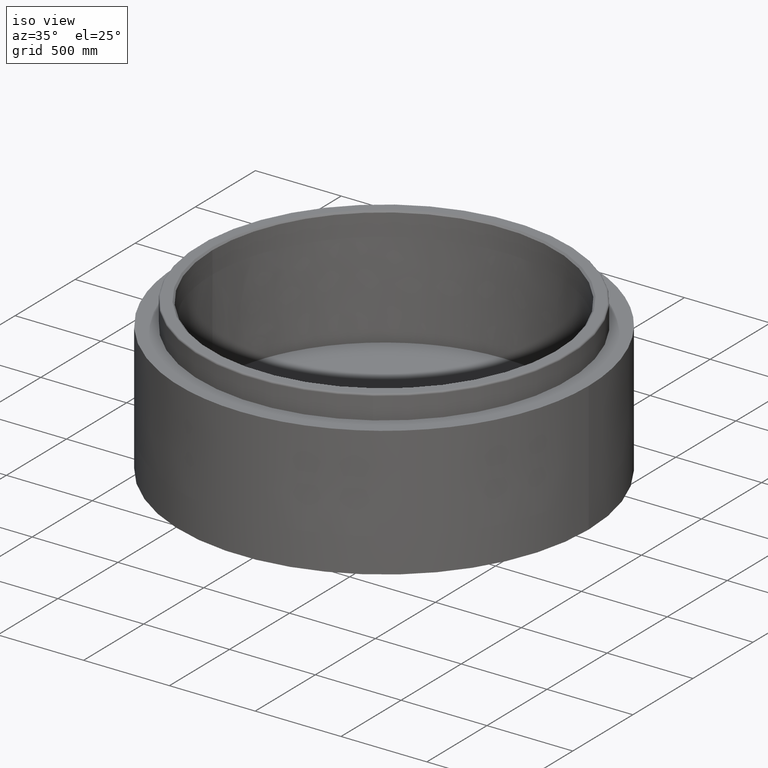
[diagram: clean part render]
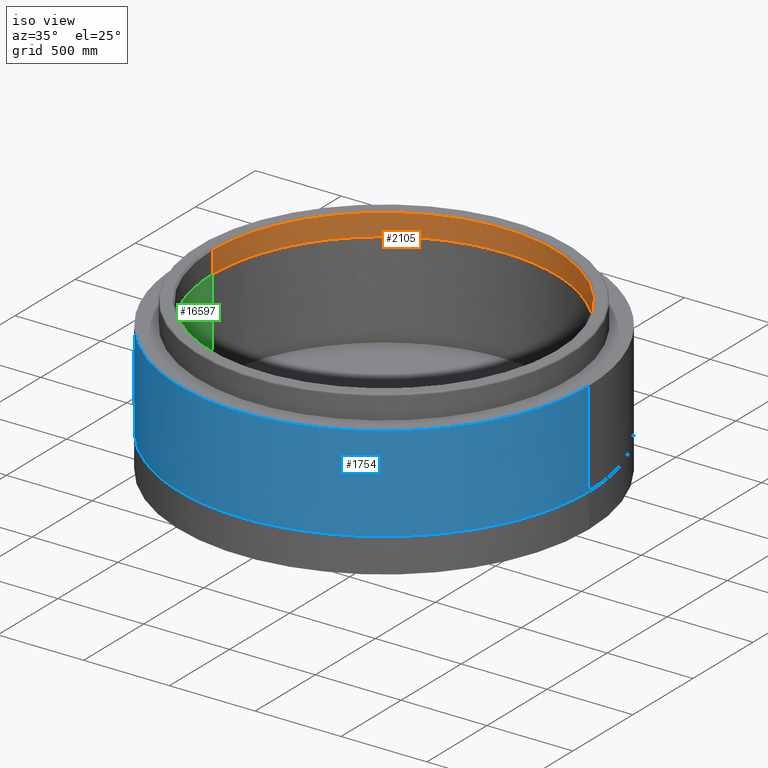
[diagram: same view with three faces highlighted in distinct colors, each labeled with its STEP entity id]
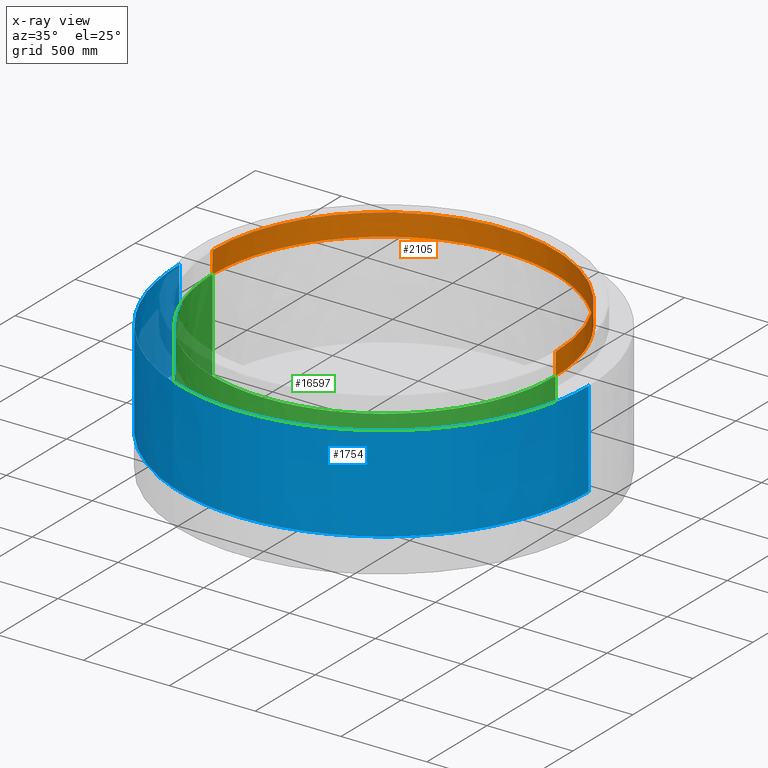
[diagram: x-ray of the same camera — body ghosted, the three highlighted faces saturated]
A machine part, iso view with three faces highlighted in distinct colors.
The next image is the same camera in x-ray (body ghosted, the three faces saturated) — at least one of them is partly hidden behind the body in this view.
Their STEP definitions:

[orange] entity #2105 — the highlighted cylindrical surface (partial cylindrical patch) has radius 1000 mm, axis along (-0, -0, -1).
#288 = ORIENTED_EDGE ( 'NONE', *, *, #9383, .F. ) ;
#664 = DIRECTION ( 'NONE',  ( -0.5325254243731409876, 0.8464140076795787504, 0.0000000000000000000 ) ) ;
#688 = DIRECTION ( 'NONE',  ( 0.0000000000000000000, 0.0000000000000000000, 1.000000000000000000 ) ) ;
#920 = CARTESIAN_POINT ( 'NONE',  ( 0.0000000000000000000, 0.0000000000000000000, 557.0000000000000000 ) ) ;
#1051 = CARTESIAN_POINT ( 'NONE',  ( 0.0000000000000000000, 0.0000000000000000000, 557.0000000000000000 ) ) ;
#1234 = CARTESIAN_POINT ( 'NONE',  ( -281.8523488860598150, 959.4578104344046778, 557.0000000000000000 ) ) ;
#1270 = CIRCLE ( 'NONE', #19573, 1000.000000000000000 ) ;
#1394 = ORIENTED_EDGE ( 'NONE', *, *, #6439, .F. ) ;
#1488 = DIRECTION ( 'NONE',  ( -0.0000000000000000000, -0.0000000000000000000, -1.000000000000000000 ) ) ;
#1717 = CARTESIAN_POINT ( 'NONE',  ( 959.4578104416010547, 281.8523488617672683, 556.9999999999998863 ) ) ;
#1994 = CYLINDRICAL_SURFACE ( 'NONE', #20316, 1000.000000000000000 ) ;
#1998 = CIRCLE ( 'NONE', #11670, 1000.000000000000000 ) ;
#2105 = ADVANCED_FACE ( 'NONE', ( #19066 ), #1994, .F. ) ;
#2490 = CARTESIAN_POINT ( 'NONE',  ( 0.0000000000000000000, 0.0000000000000000000, 557.0000000000000000 ) ) ;
#2677 = DIRECTION ( 'NONE',  ( 1.000000000000000000, 0.0000000000000000000, 0.0000000000000000000 ) ) ;
#2718 = DIRECTION ( 'NONE',  ( 0.0000000000000000000, 0.0000000000000000000, 1.000000000000000000 ) ) ;
#2731 = AXIS2_PLACEMENT_3D ( 'NONE', #9709, #16558, #14866 ) ;
#2788 = CARTESIAN_POINT ( 'NONE',  ( 0.0000000000000000000, 0.0000000000000000000, 557.0000000000000000 ) ) ;
#3272 = DIRECTION ( 'NONE',  ( 0.0000000000000000000, 0.0000000000000000000, 1.000000000000000000 ) ) ;
#3300 = ORIENTED_EDGE ( 'NONE', *, *, #4787, .F. ) ;
#3376 = DIRECTION ( 'NONE',  ( 0.0000000000000000000, 0.0000000000000000000, 1.000000000000000000 ) ) ;
#3469 = CARTESIAN_POINT ( 'NONE',  ( -959.4578124397139618, 281.8523494227334822, 557.0000000000000000 ) ) ;
#3626 = ORIENTED_EDGE ( 'NONE', *, *, #7267, .F. ) ;
#3663 = CARTESIAN_POINT ( 'NONE',  ( -707.1067811865472095, 707.1067811865477779, 557.0000000000000000 ) ) ;
#3682 = CARTESIAN_POINT ( 'NONE',  ( 0.0000000000000000000, 0.0000000000000000000, 695.0000000000001137 ) ) ;
#3817 = CIRCLE ( 'NONE', #2731, 1000.000000000000000 ) ;
#3984 = EDGE_CURVE ( 'NONE', #20852, #18038, #6991, .T. ) ;
#4153 = AXIS2_PLACEMENT_3D ( 'NONE', #1051, #11165, #14641 ) ;
#4271 = DIRECTION ( 'NONE',  ( 1.000000000000000000, 0.0000000000000000000, 0.0000000000000000000 ) ) ;
#4387 = EDGE_CURVE ( 'NONE', #18038, #7130, #1270, .T. ) ;
#4417 = ORIENTED_EDGE ( 'NONE', *, *, #9055, .F. ) ;
#4431 = ORIENTED_EDGE ( 'NONE', *, *, #19085, .T. ) ;
#4496 = CIRCLE ( 'NONE', #20637, 1000.000000000000000 ) ;
#4600 = DIRECTION ( 'NONE',  ( 0.0000000000000000000, 0.0000000000000000000, 1.000000000000000000 ) ) ;
#4787 = EDGE_CURVE ( 'NONE', #20860, #10753, #21057, .T. ) ;
#4965 = LINE ( 'NONE', #20360, #18349 ) ;
#5044 = CARTESIAN_POINT ( 'NONE',  ( 1000.000000000000000, 1.224646799147353249E-13, 685.0000000000000000 ) ) ;
#5563 = ORIENTED_EDGE ( 'NONE', *, *, #12079, .F. ) ;
#5582 = AXIS2_PLACEMENT_3D ( 'NONE', #18311, #4600, #9980 ) ;
#5957 = AXIS2_PLACEMENT_3D ( 'NONE', #16487, #16998, #18797 ) ;
#6187 = AXIS2_PLACEMENT_3D ( 'NONE', #14136, #17627, #664 ) ;
#6437 = VERTEX_POINT ( 'NONE', #14791 ) ;
#6439 = EDGE_CURVE ( 'NONE', #6437, #20860, #4496, .T. ) ;
#6481 = DIRECTION ( 'NONE',  ( 1.000000000000000000, 0.0000000000000000000, 0.0000000000000000000 ) ) ;
#6587 = CARTESIAN_POINT ( 'NONE',  ( 0.0000000000000000000, 0.0000000000000000000, 557.0000000000000000 ) ) ;
#6657 = CIRCLE ( 'NONE', #5582, 1000.000000000000000 ) ;
#6961 = EDGE_CURVE ( 'NONE', #10753, #21406, #1998, .T. ) ;
#6991 = CIRCLE ( 'NONE', #8465, 1000.000000000000000 ) ;
#7130 = VERTEX_POINT ( 'NONE', #16753 ) ;
#7267 = EDGE_CURVE ( 'NONE', #20148, #14247, #14555, .T. ) ;
#7373 = AXIS2_PLACEMENT_3D ( 'NONE', #11047, #13345, #16618 ) ;
#7387 = EDGE_CURVE ( 'NONE', #9563, #12639, #21377, .T. ) ;
#7435 = EDGE_LOOP ( 'NONE', ( #19172, #17820, #19396, #4431, #7875, #9009, #3300, #1394, #4417, #288, #14114, #5563, #14389, #11411, #20044, #3626 ) ) ;
#7585 = VECTOR ( 'NONE', #1488, 1000.000000000000000 ) ;
#7600 = CARTESIAN_POINT ( 'NONE',  ( -1000.000000000000000, 4.440892098500626162E-13, 557.0000000000000000 ) ) ;
#7673 = VERTEX_POINT ( 'NONE', #1234 ) ;
#7875 = ORIENTED_EDGE ( 'NONE', *, *, #19955, .F. ) ;
#8065 = CARTESIAN_POINT ( 'NONE',  ( -1000.000000000000000, 0.0000000000000000000, 685.0000000000000000 ) ) ;
#8074 = AXIS2_PLACEMENT_3D ( 'NONE', #13699, #3376, #10222 ) ;
#8260 = EDGE_CURVE ( 'NONE', #14247, #20852, #8432, .T. ) ;
#8295 = CARTESIAN_POINT ( 'NONE',  ( 281.8523494333110762, 959.4578124366377097, 557.0000000000000000 ) ) ;
#8418 = DIRECTION ( 'NONE',  ( 1.000000000000000000, 0.0000000000000000000, 0.0000000000000000000 ) ) ;
#8432 = CIRCLE ( 'NONE', #5957, 1000.000000000000000 ) ;
#8465 = AXIS2_PLACEMENT_3D ( 'NONE', #920, #2718, #12707 ) ;
#8701 = CARTESIAN_POINT ( 'NONE',  ( 877.7388330090686850, 479.1394178676975457, 557.0000000000000000 ) ) ;
#8799 = AXIS2_PLACEMENT_3D ( 'NONE', #2490, #688, #4271 ) ;
#9009 = ORIENTED_EDGE ( 'NONE', *, *, #6961, .F. ) ;
#9027 = CIRCLE ( 'NONE', #9391, 1000.000000000000000 ) ;
#9055 = EDGE_CURVE ( 'NONE', #7673, #6437, #3817, .T. ) ;
#9172 = CIRCLE ( 'NONE', #4153, 1000.000000000000000 ) ;
#9262 = EDGE_CURVE ( 'NONE', #15896, #12720, #6657, .T. ) ;
#9297 = CARTESIAN_POINT ( 'NONE',  ( -877.7388311878136165, 479.1394168729856915, 557.0000000000000000 ) ) ;
#9383 = EDGE_CURVE ( 'NONE', #12720, #7673, #17064, .T. ) ;
#9391 = AXIS2_PLACEMENT_3D ( 'NONE', #6587, #21878, #6481 ) ;
#9563 = VERTEX_POINT ( 'NONE', #8065 ) ;
#9709 = CARTESIAN_POINT ( 'NONE',  ( 0.0000000000000000000, 0.0000000000000000000, 557.0000000000000000 ) ) ;
#9816 = CARTESIAN_POINT ( 'NONE',  ( 1000.000000000000000, -5.665538897647979663E-13, 557.0000000000000000 ) ) ;
#9980 = DIRECTION ( 'NONE',  ( 1.000000000000000000, 0.0000000000000000000, 0.0000000000000000000 ) ) ;
#10222 = DIRECTION ( 'NONE',  ( 1.000000000000000000, 0.0000000000000000000, 0.0000000000000000000 ) ) ;
#10529 = DIRECTION ( 'NONE',  ( -0.0000000000000000000, -0.0000000000000000000, -1.000000000000000000 ) ) ;
#10634 = VERTEX_POINT ( 'NONE', #5044 ) ;
#10753 = VERTEX_POINT ( 'NONE', #9297 ) ;
#10850 = VERTEX_POINT ( 'NONE', #7600 ) ;
#11047 = CARTESIAN_POINT ( 'NONE',  ( 0.0000000000000000000, 0.0000000000000000000, 557.0000000000000000 ) ) ;
#11165 = DIRECTION ( 'NONE',  ( 0.0000000000000000000, 0.0000000000000000000, 1.000000000000000000 ) ) ;
#11207 = DIRECTION ( 'NONE',  ( 0.0000000000000000000, 0.0000000000000000000, 1.000000000000000000 ) ) ;
#11411 = ORIENTED_EDGE ( 'NONE', *, *, #3984, .F. ) ;
#11670 = AXIS2_PLACEMENT_3D ( 'NONE', #18661, #3272, #8418 ) ;
#12079 = EDGE_CURVE ( 'NONE', #7130, #15896, #9172, .T. ) ;
#12639 = VERTEX_POINT ( 'NONE', #14400 ) ;
#12707 = DIRECTION ( 'NONE',  ( 1.000000000000000000, 0.0000000000000000000, 0.0000000000000000000 ) ) ;
#12720 = VERTEX_POINT ( 'NONE', #17530 ) ;
#12810 = DIRECTION ( 'NONE',  ( -7.005467589146161716E-18, 3.518248062309025038E-17, -1.000000000000000000 ) ) ;
#13345 = DIRECTION ( 'NONE',  ( 0.0000000000000000000, 0.0000000000000000000, 1.000000000000000000 ) ) ;
#13611 = CARTESIAN_POINT ( 'NONE',  ( 1000.000000000000000, 1.224646799147353249E-13, 695.0000000000001137 ) ) ;
#13699 = CARTESIAN_POINT ( 'NONE',  ( 0.0000000000000000000, 0.0000000000000000000, 557.0000000000000000 ) ) ;
#14114 = ORIENTED_EDGE ( 'NONE', *, *, #9262, .F. ) ;
#14136 = CARTESIAN_POINT ( 'NONE',  ( 8.966998514107094886E-16, -4.503357519755555994E-15, 685.0000000000000000 ) ) ;
#14247 = VERTEX_POINT ( 'NONE', #1717 ) ;
#14389 = ORIENTED_EDGE ( 'NONE', *, *, #4387, .F. ) ;
#14400 = CARTESIAN_POINT ( 'NONE',  ( -532.5254243731409360, 846.4140076795789582, 685.0000000000000000 ) ) ;
#14555 = CIRCLE ( 'NONE', #8799, 1000.000000000000000 ) ;
#14641 = DIRECTION ( 'NONE',  ( 1.000000000000000000, 0.0000000000000000000, 0.0000000000000000000 ) ) ;
#14791 = CARTESIAN_POINT ( 'NONE',  ( -479.1394178595961080, 877.7388330135169099, 557.0000000000000000 ) ) ;
#14866 = DIRECTION ( 'NONE',  ( 1.000000000000000000, 0.0000000000000000000, 0.0000000000000000000 ) ) ;
#15896 = VERTEX_POINT ( 'NONE', #8295 ) ;
#16487 = CARTESIAN_POINT ( 'NONE',  ( 0.0000000000000000000, 0.0000000000000000000, 557.0000000000000000 ) ) ;
#16558 = DIRECTION ( 'NONE',  ( 0.0000000000000000000, 0.0000000000000000000, 1.000000000000000000 ) ) ;
#16618 = DIRECTION ( 'NONE',  ( 1.000000000000000000, 0.0000000000000000000, 0.0000000000000000000 ) ) ;
#16753 = CARTESIAN_POINT ( 'NONE',  ( 479.1394168684765873, 877.7388311902170699, 557.0000000000000000 ) ) ;
#16877 = LINE ( 'NONE', #13611, #7585 ) ;
#16998 = DIRECTION ( 'NONE',  ( 0.0000000000000000000, 0.0000000000000000000, 1.000000000000000000 ) ) ;
#17064 = CIRCLE ( 'NONE', #7373, 1000.000000000000000 ) ;
#17389 = DIRECTION ( 'NONE',  ( -1.000000000000000000, 0.0000000000000000000, 0.0000000000000000000 ) ) ;
#17530 = CARTESIAN_POINT ( 'NONE',  ( 3.828568698926949411E-13, 1000.000000000000000, 557.0000000000000000 ) ) ;
#17627 = DIRECTION ( 'NONE',  ( -7.005467589146161716E-18, 3.518248062309025038E-17, -1.000000000000000000 ) ) ;
#17712 = EDGE_CURVE ( 'NONE', #12639, #10634, #19455, .T. ) ;
#17820 = ORIENTED_EDGE ( 'NONE', *, *, #17712, .F. ) ;
#17854 = DIRECTION ( 'NONE',  ( 1.000000000000000000, 0.0000000000000000000, 0.0000000000000000000 ) ) ;
#17959 = DIRECTION ( 'NONE',  ( 0.0000000000000000000, 0.0000000000000000000, 1.000000000000000000 ) ) ;
#18038 = VERTEX_POINT ( 'NONE', #19938 ) ;
#18206 = DIRECTION ( 'NONE',  ( -0.5325254243731409876, 0.8464140076795787504, 0.0000000000000000000 ) ) ;
#18311 = CARTESIAN_POINT ( 'NONE',  ( 0.0000000000000000000, 0.0000000000000000000, 557.0000000000000000 ) ) ;
#18349 = VECTOR ( 'NONE', #21930, 1000.000000000000000 ) ;
#18490 = AXIS2_PLACEMENT_3D ( 'NONE', #19553, #12810, #18206 ) ;
#18661 = CARTESIAN_POINT ( 'NONE',  ( 0.0000000000000000000, 0.0000000000000000000, 557.0000000000000000 ) ) ;
#18797 = DIRECTION ( 'NONE',  ( 1.000000000000000000, 0.0000000000000000000, 0.0000000000000000000 ) ) ;
#19066 = FACE_OUTER_BOUND ( 'NONE', #7435, .T. ) ;
#19085 = EDGE_CURVE ( 'NONE', #9563, #10850, #4965, .T. ) ;
#19172 = ORIENTED_EDGE ( 'NONE', *, *, #20287, .F. ) ;
#19396 = ORIENTED_EDGE ( 'NONE', *, *, #7387, .F. ) ;
#19455 = CIRCLE ( 'NONE', #6187, 1000.000000000000114 ) ;
#19553 = CARTESIAN_POINT ( 'NONE',  ( 8.966998514107094886E-16, -4.503357519755555994E-15, 685.0000000000000000 ) ) ;
#19573 = AXIS2_PLACEMENT_3D ( 'NONE', #20629, #17959, #17854 ) ;
#19938 = CARTESIAN_POINT ( 'NONE',  ( 707.1067811865477779, 707.1067811865472095, 557.0000000000000000 ) ) ;
#19955 = EDGE_CURVE ( 'NONE', #21406, #10850, #9027, .T. ) ;
#20044 = ORIENTED_EDGE ( 'NONE', *, *, #8260, .F. ) ;
#20148 = VERTEX_POINT ( 'NONE', #9816 ) ;
#20287 = EDGE_CURVE ( 'NONE', #10634, #20148, #16877, .T. ) ;
#20316 = AXIS2_PLACEMENT_3D ( 'NONE', #3682, #10529, #17389 ) ;
#20360 = CARTESIAN_POINT ( 'NONE',  ( -1000.000000000000000, 0.0000000000000000000, 695.0000000000001137 ) ) ;
#20629 = CARTESIAN_POINT ( 'NONE',  ( 0.0000000000000000000, 0.0000000000000000000, 557.0000000000000000 ) ) ;
#20637 = AXIS2_PLACEMENT_3D ( 'NONE', #2788, #11207, #2677 ) ;
#20852 = VERTEX_POINT ( 'NONE', #8701 ) ;
#20860 = VERTEX_POINT ( 'NONE', #3663 ) ;
#21057 = CIRCLE ( 'NONE', #8074, 1000.000000000000000 ) ;
#21377 = CIRCLE ( 'NONE', #18490, 1000.000000000000114 ) ;
#21406 = VERTEX_POINT ( 'NONE', #3469 ) ;
#21878 = DIRECTION ( 'NONE',  ( 0.0000000000000000000, 0.0000000000000000000, 1.000000000000000000 ) ) ;
#21930 = DIRECTION ( 'NONE',  ( -0.0000000000000000000, -0.0000000000000000000, -1.000000000000000000 ) ) ;

[blue] entity #1754 — the highlighted face is a freeform B-spline surface patch.
#6 = CARTESIAN_POINT ( 'NONE',  ( 466.3464655845115203, -1098.086278104888834, 0.0000000000000000000 ) ) ;
#18 = VERTEX_POINT ( 'NONE', #21172 ) ;
#20 = CARTESIAN_POINT ( 'NONE',  ( -336.2530333695491436, -1144.632210602941768, 0.0000000000000000000 ) ) ;
#100 = CARTESIAN_POINT ( 'NONE',  ( 1047.143998278743311, -571.6103977962681029, 0.0000000000000000000 ) ) ;
#101 = CARTESIAN_POINT ( 'NONE',  ( 384.8556437293258909, -1131.879135994909120, 0.0000000000000000000 ) ) ;
#219 = CARTESIAN_POINT ( 'NONE',  ( 117.9061015040583129, -1187.161968393544385, 185.6666666666667140 ) ) ;
#324 = CARTESIAN_POINT ( 'NONE',  ( 1110.468912292221603, -436.5241311987226709, 557.0000000000002274 ) ) ;
#334 = CARTESIAN_POINT ( 'NONE',  ( -195.6094161878200737, -1177.503143244390230, 557.0000000000000000 ) ) ;
#449 = CARTESIAN_POINT ( 'NONE',  ( -156.9232592469336680, -1183.287724649782376, 371.3333333333335418 ) ) ;
#459 = CARTESIAN_POINT ( 'NONE',  ( 476.1740398323344152, -1093.860552164960609, 557.0000000000000000 ) ) ;
#529 = CARTESIAN_POINT ( 'NONE',  ( 1094.235462105335500, -475.7554648946928637, -1.599578441921814520E-13 ) ) ;
#562 = CARTESIAN_POINT ( 'NONE',  ( -195.6094161878200737, -1177.503143244390230, 0.0000000000000000000 ) ) ;
#642 = ORIENTED_EDGE ( 'NONE', *, *, #11253, .T. ) ;
#667 = CARTESIAN_POINT ( 'NONE',  ( 1085.582050390993118, -495.1878347200282633, 556.9999999999997726 ) ) ;
#677 = CARTESIAN_POINT ( 'NONE',  ( -694.3037128062347847, -970.9372021069309540, 557.0000000000000000 ) ) ;
#742 = ORIENTED_EDGE ( 'NONE', *, *, #4824, .F. ) ;
#789 = CARTESIAN_POINT ( 'NONE',  ( 39.54070497475741774, -1193.000000000000227, 557.0000000000000000 ) ) ;
#812 = FACE_OUTER_BOUND ( 'NONE', #12831, .T. ) ;
#840 = CARTESIAN_POINT ( 'NONE',  ( -377.2030325981388046, -1131.997591810013773, -0.0000000000000000000 ) ) ;
#868 = CARTESIAN_POINT ( 'NONE',  ( 1085.582050392298925, -495.1878347171463588, 3.286920438420870565E-29 ) ) ;
#898 = CARTESIAN_POINT ( 'NONE',  ( -1102.186291999700416, -456.5405104079876537, 185.6666666666667140 ) ) ;
#999 = CARTESIAN_POINT ( 'NONE',  ( 1144.632210604118427, -336.2530333655441837, 557.0000000000000000 ) ) ;
#1003 = CARTESIAN_POINT ( 'NONE',  ( -970.9372021069318635, -694.3037128062337615, 0.0000000000000000000 ) ) ;
#1016 = EDGE_CURVE ( 'NONE', #3808, #2840, #17266, .T. ) ;
#1032 = CARTESIAN_POINT ( 'NONE',  ( 871.5378905760989028, -815.6188893350035869, 185.6666666666666856 ) ) ;
#1039 = CARTESIAN_POINT ( 'NONE',  ( -1085.263118598301162, -495.8805301117492377, 0.0000000000000000000 ) ) ;
#1112 = CARTESIAN_POINT ( 'NONE',  ( -843.5783899555516427, -843.5783899555507332, 557.0000000000000000 ) ) ;
#1140 = CARTESIAN_POINT ( 'NONE',  ( 1183.287724649781921, -156.9232592469361691, 557.0000000000000000 ) ) ;
#1218 = CARTESIAN_POINT ( 'NONE',  ( -1072.493448004491711, -528.2253770866494733, 557.0000000000000000 ) ) ;
#1243 = EDGE_CURVE ( 'NONE', #13148, #3808, #4531, .T. ) ;
#1249 = CARTESIAN_POINT ( 'NONE',  ( 970.9372021069308403, -694.3037128062347847, 371.3333333333332575 ) ) ;
#1305 = DIRECTION ( 'NONE',  ( -0.0000000000000000000, -0.0000000000000000000, -1.000000000000000000 ) ) ;
#1324 = CARTESIAN_POINT ( 'NONE',  ( -756.0780743010559490, -922.8224821346335602, 371.3333333333335418 ) ) ;
#1351 = CARTESIAN_POINT ( 'NONE',  ( 1177.503143244390458, -195.6094161878197326, 371.3333333333334849 ) ) ;
#1368 = CARTESIAN_POINT ( 'NONE',  ( 505.3643933993012638, -1080.724204289678937, 0.0000000000000000000 ) ) ;
#1458 = CARTESIAN_POINT ( 'NONE',  ( 992.5612172664723403, -661.8745857404278468, 185.6666666666666003 ) ) ;
#1464 = CARTESIAN_POINT ( 'NONE',  ( -1144.632210600924736, -336.2530333764154307, 0.0000000000000000000 ) ) ;
#1479 = AXIS2_PLACEMENT_3D ( 'NONE', #2702, #14495, #4267 ) ;
#1549 = DIRECTION ( 'NONE',  ( -0.0000000000000000000, -0.0000000000000000000, -1.000000000000000000 ) ) ;
#1565 = CARTESIAN_POINT ( 'NONE',  ( 384.8556437293258909, -1131.879135994909120, 185.6666666666667140 ) ) ;
#1628 = DIRECTION ( 'NONE',  ( 1.000000000000000000, 0.0000000000000000000, 0.0000000000000000000 ) ) ;
#1674 = DIRECTION ( 'NONE',  ( 0.0000000000000000000, 0.0000000000000000000, 1.000000000000000000 ) ) ;
#1677 = CARTESIAN_POINT ( 'NONE',  ( 195.6094161878188800, -1177.503143244390230, 0.0000000000000000000 ) ) ;
#1713 = CARTESIAN_POINT ( 'NONE',  ( -1047.143998172631655, -571.6103979906561108, 557.0000000000000000 ) ) ;
#1754 = ADVANCED_FACE ( 'NONE', ( #812 ), #10922, .T. ) ;
#1792 = CARTESIAN_POINT ( 'NONE',  ( 786.4068751468502114, -897.9726893352061552, 556.9999999999998863 ) ) ;
#1840 = AXIS2_PLACEMENT_3D ( 'NONE', #11558, #13454, #8067 ) ;
#1905 = CARTESIAN_POINT ( 'NONE',  ( 117.9061015040583129, -1187.161968393544385, 371.3333333333335418 ) ) ;
#1938 = CARTESIAN_POINT ( 'NONE',  ( 0.0000000000000000000, 0.0000000000000000000, 557.0000000000000000 ) ) ;
#1999 = AXIS2_PLACEMENT_3D ( 'NONE', #16433, #13169, #13273 ) ;
#2024 = CARTESIAN_POINT ( 'NONE',  ( 756.0780743010551532, -922.8224821346342424, 556.9999999999998863 ) ) ;
#2137 = CARTESIAN_POINT ( 'NONE',  ( 39.54070497475741774, -1193.000000000000227, 0.0000000000000000000 ) ) ;
#2145 = CARTESIAN_POINT ( 'NONE',  ( 356.5473028362452510, -1138.669825678807683, 557.0000000000001137 ) ) ;
#2166 = ORIENTED_EDGE ( 'NONE', *, *, #20444, .T. ) ;
#2217 = CARTESIAN_POINT ( 'NONE',  ( 0.0000000000000000000, 0.0000000000000000000, 0.0000000000000000000 ) ) ;
#2220 = CARTESIAN_POINT ( 'NONE',  ( 0.0000000000000000000, 0.0000000000000000000, 0.0000000000000000000 ) ) ;
#2221 = CIRCLE ( 'NONE', #10095, 1193.000000000000227 ) ;
#2250 = CARTESIAN_POINT ( 'NONE',  ( -456.5405104079888474, -1102.186291999699961, 371.3333333333335418 ) ) ;
#2261 = EDGE_CURVE ( 'NONE', #20943, #6706, #18529, .T. ) ;
#2279 = VERTEX_POINT ( 'NONE', #8373 ) ;
#2367 = CARTESIAN_POINT ( 'NONE',  ( -597.0163316088139709, -1035.809247585555340, 185.6666666666667140 ) ) ;
#2393 = CARTESIAN_POINT ( 'NONE',  ( 1193.000000000000000, -39.54070497475860435, -2.984961719916862273E-17 ) ) ;
#2403 = VERTEX_POINT ( 'NONE', #7947 ) ;
#2479 = CARTESIAN_POINT ( 'NONE',  ( -725.7492734552610045, -947.6722749340616474, 371.3333333333335418 ) ) ;
#2531 = CARTESIAN_POINT ( 'NONE',  ( -552.9743869253608182, -1057.316244604973690, 0.0000000000000000000 ) ) ;
#2588 = CARTESIAN_POINT ( 'NONE',  ( 39.54070497475741774, -1193.000000000000227, 185.6666666666667140 ) ) ;
#2694 = CARTESIAN_POINT ( 'NONE',  ( -871.5378905760996986, -815.6188893350025637, 0.0000000000000000000 ) ) ;
#2699 = CARTESIAN_POINT ( 'NONE',  ( -437.2605615748894934, -1110.179136669989020, 557.0000000000001137 ) ) ;
#2702 = CARTESIAN_POINT ( 'NONE',  ( 0.0000000000000000000, 0.0000000000000000000, 0.0000000000000000000 ) ) ;
#2722 = CARTESIAN_POINT ( 'NONE',  ( 1154.582039543190831, -310.2734464237742031, 185.6666666666666572 ) ) ;
#2787 = DIRECTION ( 'NONE',  ( -0.0000000000000000000, -0.0000000000000000000, -1.000000000000000000 ) ) ;
#2804 = DIRECTION ( 'NONE',  ( 0.0000000000000000000, 0.0000000000000000000, 1.000000000000000000 ) ) ;
#2806 = CARTESIAN_POINT ( 'NONE',  ( -815.6188893350037006, -871.5378905760987891, 557.0000000000000000 ) ) ;
#2834 = CARTESIAN_POINT ( 'NONE',  ( 897.9726893352055868, -786.4068751468510072, 371.3333333333334281 ) ) ;
#2840 = VERTEX_POINT ( 'NONE', #21626 ) ;
#2915 = CARTESIAN_POINT ( 'NONE',  ( -786.4068751468510072, -897.9726893352054731, 185.6666666666667140 ) ) ;
#2944 = CARTESIAN_POINT ( 'NONE',  ( 947.6722749340617611, -725.7492734552610045, 185.6666666666666288 ) ) ;
#2966 = CARTESIAN_POINT ( 'NONE',  ( -437.2605615845124589, -1110.179136666189834, -0.0000000000000000000 ) ) ;
#3016 = CARTESIAN_POINT ( 'NONE',  ( -1169.862775343990506, -233.8307595998035424, 557.0000000000000000 ) ) ;
#3045 = CARTESIAN_POINT ( 'NONE',  ( 922.8224821346335602, -756.0780743010559490, 557.0000000000000000 ) ) ;
#3158 = CARTESIAN_POINT ( 'NONE',  ( 843.5783899555508469, -843.5783899555515291, 556.9999999999998863 ) ) ;
#3193 = ORIENTED_EDGE ( 'NONE', *, *, #1016, .T. ) ;
#3261 = CARTESIAN_POINT ( 'NONE',  ( 661.8745857404270510, -992.5612172664730224, 557.0000000000000000 ) ) ;
#3368 = CARTESIAN_POINT ( 'NONE',  ( 195.6094161878188800, -1177.503143244390230, 557.0000000000000000 ) ) ;
#3385 = CARTESIAN_POINT ( 'NONE',  ( 461.4095963536012732, -1100.169838140987395, -0.0000000000000000000 ) ) ;
#3445 = EDGE_CURVE ( 'NONE', #12717, #6017, #15331, .T. ) ;
#3455 = CARTESIAN_POINT ( 'NONE',  ( -1193.000000000000227, 6.056772831655993885E-13, 185.6666666666667140 ) ) ;
#3484 = CARTESIAN_POINT ( 'NONE',  ( 310.2734464237731800, -1154.582039543190831, 371.3333333333335418 ) ) ;
#3548 = CARTESIAN_POINT ( 'NONE',  ( 336.2530334110388708, -1144.632210590753630, 557.0000000000000000 ) ) ;
#3575 = EDGE_CURVE ( 'NONE', #6017, #18, #16693, .T. ) ;
#3595 = CARTESIAN_POINT ( 'NONE',  ( 661.8745857404270510, -992.5612172664730224, 0.0000000000000000000 ) ) ;
#3603 = CARTESIAN_POINT ( 'NONE',  ( 505.3643934007752136, -1080.724204288987266, 556.9999999999997726 ) ) ;
#3710 = CARTESIAN_POINT ( 'NONE',  ( 815.6188893350029048, -871.5378905760995849, 0.0000000000000000000 ) ) ;
#3799 = CIRCLE ( 'NONE', #21713, 1193.000000000000227 ) ;
#3808 = VERTEX_POINT ( 'NONE', #4336 ) ;
#3824 = CARTESIAN_POINT ( 'NONE',  ( -233.8307595998048214, -1169.862775343990279, 371.3333333333335418 ) ) ;
#3935 = CARTESIAN_POINT ( 'NONE',  ( -117.9061015040593787, -1187.161968393544157, 0.0000000000000000000 ) ) ;
#4031 = CARTESIAN_POINT ( 'NONE',  ( 1193.000000000000227, -3.625572064791527837E-13, 557.0000000000000000 ) ) ;
#4034 = CARTESIAN_POINT ( 'NONE',  ( 1067.049910110763904, -533.6340863178093059, 557.0000000000002274 ) ) ;
#4045 = CARTESIAN_POINT ( 'NONE',  ( -661.8745857404278468, -992.5612172664723403, 371.3333333333335418 ) ) ;
#4144 = CARTESIAN_POINT ( 'NONE',  ( 1138.654558615437736, -356.5992675986272502, 556.9999999999997726 ) ) ;
#4154 = CARTESIAN_POINT ( 'NONE',  ( -694.3037128062347847, -970.9372021069309540, 185.6666666666667140 ) ) ;
#4218 = VERTEX_POINT ( 'NONE', #999 ) ;
#4229 = DIRECTION ( 'NONE',  ( 0.0000000000000000000, 0.0000000000000000000, 1.000000000000000000 ) ) ;
#4259 = CARTESIAN_POINT ( 'NONE',  ( -528.2253770866506102, -1072.493448004491029, 557.0000000000000000 ) ) ;
#4267 = DIRECTION ( 'NONE',  ( 1.000000000000000000, 0.0000000000000000000, 0.0000000000000000000 ) ) ;
#4325 = VERTEX_POINT ( 'NONE', #7256 ) ;
#4336 = CARTESIAN_POINT ( 'NONE',  ( -1144.632210600924736, -336.2530333764154307, 0.0000000000000000000 ) ) ;
#4367 = CARTESIAN_POINT ( 'NONE',  ( -992.5612172664732498, -661.8745857404268236, 0.0000000000000000000 ) ) ;
#4395 = CARTESIAN_POINT ( 'NONE',  ( 1102.186291999700188, -456.5405104079886769, 556.9999999999998863 ) ) ;
#4477 = CARTESIAN_POINT ( 'NONE',  ( -1131.879135994909348, -384.8556437293257773, 557.0000000000000000 ) ) ;
#4505 = CARTESIAN_POINT ( 'NONE',  ( 1072.493448004491256, -528.2253770866506102, 371.3333333333334281 ) ) ;
#4510 = ORIENTED_EDGE ( 'NONE', *, *, #15263, .T. ) ;
#4531 = CIRCLE ( 'NONE', #15645, 1193.000000000000227 ) ;
#4588 = CARTESIAN_POINT ( 'NONE',  ( 0.0000000000000000000, 0.0000000000000000000, 0.0000000000000000000 ) ) ;
#4590 = CARTESIAN_POINT ( 'NONE',  ( -947.6722749340626706, -725.7492734552597540, 185.6666666666667140 ) ) ;
#4617 = CARTESIAN_POINT ( 'NONE',  ( 992.5612172664723403, -661.8745857404278468, 0.0000000000000000000 ) ) ;
#4690 = CARTESIAN_POINT ( 'NONE',  ( -1102.186291999700416, -456.5405104079876537, 0.0000000000000000000 ) ) ;
#4720 = CARTESIAN_POINT ( 'NONE',  ( 1131.879135994908893, -384.8556437293269141, 185.6666666666666572 ) ) ;
#4735 = CARTESIAN_POINT ( 'NONE',  ( -336.2530333574074461, -1144.632210606508806, 557.0000000000000000 ) ) ;
#4792 = CARTESIAN_POINT ( 'NONE',  ( -922.8224821346345834, -756.0780743010549259, 371.3333333333335418 ) ) ;
#4823 = CARTESIAN_POINT ( 'NONE',  ( 1131.879135994908893, -384.8556437293268004, 556.9999999999998863 ) ) ;
#4824 = EDGE_CURVE ( 'NONE', #6488, #13517, #9975, .T. ) ;
#4935 = CARTESIAN_POINT ( 'NONE',  ( 456.5405104079877674, -1102.186291999700643, 371.3333333333334281 ) ) ;
#5012 = CARTESIAN_POINT ( 'NONE',  ( -1183.287724649782604, -156.9232592469324459, 185.6666666666667140 ) ) ;
#5041 = CARTESIAN_POINT ( 'NONE',  ( 456.5405104079877674, -1102.186291999700416, 0.0000000000000000000 ) ) ;
#5052 = EDGE_CURVE ( 'NONE', #5250, #4218, #19645, .T. ) ;
#5152 = CARTESIAN_POINT ( 'NONE',  ( 815.6188893350029048, -871.5378905760995849, 185.6666666666666856 ) ) ;
#5250 = VERTEX_POINT ( 'NONE', #14141 ) ;
#5265 = CARTESIAN_POINT ( 'NONE',  ( 815.6188893350029048, -871.5378905760995849, 371.3333333333334281 ) ) ;
#5306 = VERTEX_POINT ( 'NONE', #9201 ) ;
#5351 = CARTESIAN_POINT ( 'NONE',  ( -1187.161968393544385, -117.9061015040581566, 0.0000000000000000000 ) ) ;
#5380 = CARTESIAN_POINT ( 'NONE',  ( 597.0163316088130614, -1035.809247585555795, 0.0000000000000000000 ) ) ;
#5384 = CARTESIAN_POINT ( 'NONE',  ( 0.0000000000000000000, 0.0000000000000000000, 557.0000000000000000 ) ) ;
#5493 = CARTESIAN_POINT ( 'NONE',  ( 39.54070497475741774, -1193.000000000000227, 371.3333333333335418 ) ) ;
#5598 = CARTESIAN_POINT ( 'NONE',  ( 1057.269757360082167, -552.6816351404115721, 556.9999999999997726 ) ) ;
#5607 = CARTESIAN_POINT ( 'NONE',  ( -6.056772831655992875E-13, -1193.000000000000227, 0.0000000000000000000 ) ) ;
#5614 = EDGE_CURVE ( 'NONE', #4325, #10932, #15605, .T. ) ;
#5718 = CARTESIAN_POINT ( 'NONE',  ( -661.8745857404278468, -992.5612172664723403, 557.0000000000000000 ) ) ;
#5727 = CARTESIAN_POINT ( 'NONE',  ( 481.0682617862156576, -1091.716961811273904, 557.0000000000000000 ) ) ;
#5791 = CIRCLE ( 'NONE', #1479, 1193.000000000000227 ) ;
#5834 = CARTESIAN_POINT ( 'NONE',  ( -456.5405104079887906, -1102.186291999699961, 185.6666666666667140 ) ) ;
#5912 = CARTESIAN_POINT ( 'NONE',  ( 1118.048934774447616, -416.7251618597147740, -1.632568912645313286E-13 ) ) ;
#5917 = CARTESIAN_POINT ( 'NONE',  ( -1.313214502504839012E-10, -1193.000000000000227, 0.0000000000000000000 ) ) ;
#5943 = CARTESIAN_POINT ( 'NONE',  ( -456.5405104079888474, -1102.186291999699961, 557.0000000000000000 ) ) ;
#5969 = CARTESIAN_POINT ( 'NONE',  ( 1191.036212137306165, -78.88894376118236096, 185.6666666666666572 ) ) ;
#6017 = VERTEX_POINT ( 'NONE', #11262 ) ;
#6051 = CARTESIAN_POINT ( 'NONE',  ( -786.4068751468510072, -897.9726893352054731, 0.0000000000000000000 ) ) ;
#6077 = CARTESIAN_POINT ( 'NONE',  ( 947.6722749340616474, -725.7492734552610045, -9.167412723543035976E-14 ) ) ;
#6157 = CARTESIAN_POINT ( 'NONE',  ( -947.6722749340626706, -725.7492734552597540, 0.0000000000000000000 ) ) ;
#6162 = CARTESIAN_POINT ( 'NONE',  ( -356.8543190194177441, -1138.579625406078321, 556.9999999999997726 ) ) ;
#6171 = EDGE_CURVE ( 'NONE', #5306, #9884, #17043, .T. ) ;
#6188 = CARTESIAN_POINT ( 'NONE',  ( 1102.186291999700188, -456.5405104079886769, -4.416449399277270564E-14 ) ) ;
#6194 = CARTESIAN_POINT ( 'NONE',  ( -1057.309934515765690, -552.9859472915104561, -0.0000000000000000000 ) ) ;
#6267 = CARTESIAN_POINT ( 'NONE',  ( -897.9726893352064963, -786.4068751468499840, 557.0000000000000000 ) ) ;
#6295 = CARTESIAN_POINT ( 'NONE',  ( 1169.862775343990734, -233.8307595998045372, 371.3333333333334849 ) ) ;
#6322 = CARTESIAN_POINT ( 'NONE',  ( -534.0941786835838911, -1066.976598408782138, -0.0000000000000000000 ) ) ;
#6374 = CARTESIAN_POINT ( 'NONE',  ( -843.5783899555516427, -843.5783899555507332, 371.3333333333335418 ) ) ;
#6403 = CARTESIAN_POINT ( 'NONE',  ( 1187.161968393543930, -117.9061015040592508, -1.148426176446377149E-13 ) ) ;
#6476 = CARTESIAN_POINT ( 'NONE',  ( -992.5612172664732498, -661.8745857404268236, 185.6666666666667140 ) ) ;
#6488 = VERTEX_POINT ( 'NONE', #3548 ) ;
#6507 = CARTESIAN_POINT ( 'NONE',  ( 970.9372021069309540, -694.3037128062346710, 556.9999999999998863 ) ) ;
#6582 = CARTESIAN_POINT ( 'NONE',  ( -1177.503143244390230, -195.6094161878187663, 557.0000000000000000 ) ) ;
#6613 = CARTESIAN_POINT ( 'NONE',  ( 725.7492734552599813, -947.6722749340623295, 185.6666666666666856 ) ) ;
#6620 = CARTESIAN_POINT ( 'NONE',  ( -1138.575823559241144, -356.8672594279358918, -0.0000000000000000000 ) ) ;
#6647 = CARTESIAN_POINT ( 'NONE',  ( -1093.903799374640130, -476.5175760357365675, 557.0000000000001137 ) ) ;
#6692 = CARTESIAN_POINT ( 'NONE',  ( -1183.287724649782604, -156.9232592469324459, 0.0000000000000000000 ) ) ;
#6706 = VERTEX_POINT ( 'NONE', #16968 ) ;
#6722 = CARTESIAN_POINT ( 'NONE',  ( 233.8307595998036561, -1169.862775343990506, 0.0000000000000000000 ) ) ;
#6753 = DIRECTION ( 'NONE',  ( -0.0000000000000000000, -0.0000000000000000000, -1.000000000000000000 ) ) ;
#6802 = CARTESIAN_POINT ( 'NONE',  ( -1193.000000000000227, 6.056772831655994895E-13, 371.3333333333335418 ) ) ;
#6830 = CARTESIAN_POINT ( 'NONE',  ( 233.8307595998036561, -1169.862775343990506, 185.6666666666667140 ) ) ;
#6913 = CARTESIAN_POINT ( 'NONE',  ( -1193.000000000000227, -39.54070497475738932, 557.0000000000000000 ) ) ;
#6941 = CARTESIAN_POINT ( 'NONE',  ( 310.2734464237731800, -1154.582039543190831, 0.0000000000000000000 ) ) ;
#6949 = CARTESIAN_POINT ( 'NONE',  ( 571.6103979929713432, -1047.143998171367912, 557.0000000000000000 ) ) ;
#6990 = B_SPLINE_CURVE_WITH_KNOTS ( 'NONE', 3,
 ( #22044, #10028, #9921, #11710, #13614, #6647, #20248, #20700, #18463, #1713 ),
 .UNSPECIFIED., .F., .F.,
 ( 4, 2, 2, 2, 4 ),
 ( 0.3397156268068468599, 0.4035683020787442232, 0.4674209773506415866, 0.5312736526225390055, 0.5951263278944363133 ),
 .UNSPECIFIED. ) ;
#7061 = CARTESIAN_POINT ( 'NONE',  ( 117.9061015040583129, -1187.161968393544385, 557.0000000000000000 ) ) ;
#7175 = CARTESIAN_POINT ( 'NONE',  ( -233.8307595998048214, -1169.862775343990279, 0.0000000000000000000 ) ) ;
#7183 = CARTESIAN_POINT ( 'NONE',  ( 534.1489978569503592, -1066.950621492062510, 556.9999999999998863 ) ) ;
#7256 = CARTESIAN_POINT ( 'NONE',  ( -1144.632210601342649, -336.2530333749930378, 557.0000000000000000 ) ) ;
#7274 = CARTESIAN_POINT ( 'NONE',  ( 1193.000000000000000, -3.634245682171410863E-13, 185.6666668523333215 ) ) ;
#7287 = CARTESIAN_POINT ( 'NONE',  ( -310.2734464237743168, -1154.582039543190604, 0.0000000000000000000 ) ) ;
#7403 = CARTESIAN_POINT ( 'NONE',  ( -156.9232592469336680, -1183.287724649782376, 557.0000000000000000 ) ) ;
#7514 = CARTESIAN_POINT ( 'NONE',  ( -195.6094161878200737, -1177.503143244390230, 185.6666666666667140 ) ) ;
#7551 = CARTESIAN_POINT ( 'NONE',  ( -1047.143998172631655, -571.6103979906561108, 557.0000000000000000 ) ) ;
#7597 = CARTESIAN_POINT ( 'NONE',  ( 1110.468912292872119, -436.5241311970448237, -1.599578441921814268E-13 ) ) ;
#7619 = CARTESIAN_POINT ( 'NONE',  ( 1052.258776024216786, -562.1641163296686727, 556.9999999999998863 ) ) ;
#7628 = CARTESIAN_POINT ( 'NONE',  ( -78.88894376118507523, -1191.036212137305938, 371.3333333333335418 ) ) ;
#7651 = CARTESIAN_POINT ( 'NONE',  ( 1193.000000000000000, -39.54070497475860435, 557.0000000000000000 ) ) ;
#7736 = CARTESIAN_POINT ( 'NONE',  ( -871.5378905760996986, -815.6188893350025637, 185.6666666666667140 ) ) ;
#7741 = CARTESIAN_POINT ( 'NONE',  ( -476.4813028111004201, -1093.919600936126699, 557.0000000000001137 ) ) ;
#7749 = AXIS2_PLACEMENT_3D ( 'NONE', #18174, #2787, #1628 ) ;
#7838 = CARTESIAN_POINT ( 'NONE',  ( -1102.186291999700643, -456.5405104079876537, 371.3333333333335418 ) ) ;
#7843 = CARTESIAN_POINT ( 'NONE',  ( -336.2530333574074461, -1144.632210606508806, 557.0000000000000000 ) ) ;
#7868 = CARTESIAN_POINT ( 'NONE',  ( 843.5783899555508469, -843.5783899555515291, 371.3333333333334281 ) ) ;
#7917 = ORIENTED_EDGE ( 'NONE', *, *, #21162, .T. ) ;
#7947 = CARTESIAN_POINT ( 'NONE',  ( 0.0000000000000000000, -1193.000000000000227, 557.0000000000000000 ) ) ;
#7949 = B_SPLINE_CURVE_WITH_KNOTS ( 'NONE', 3,
 ( #13379, #15167, #22029, #17980, #7741, #2699, #21560, #20088, #6162, #7843 ),
 .UNSPECIFIED., .F., .F.,
 ( 4, 2, 2, 2, 4 ),
 ( 1.276033611487462638, 1.339906850978275665, 1.403780090469088471, 1.467653329959901276, 1.531526569450714081 ),
 .UNSPECIFIED. ) ;
#7950 = CARTESIAN_POINT ( 'NONE',  ( -897.9726893352064963, -786.4068751468499840, 185.6666666666667140 ) ) ;
#7979 = CARTESIAN_POINT ( 'NONE',  ( 871.5378905760989028, -815.6188893350035869, 0.0000000000000000000 ) ) ;
#8054 = CARTESIAN_POINT ( 'NONE',  ( -1072.493448004491711, -528.2253770866494733, 371.3333333333335418 ) ) ;
#8067 = DIRECTION ( 'NONE',  ( 1.000000000000000000, 0.0000000000000000000, 0.0000000000000000000 ) ) ;
#8084 = CARTESIAN_POINT ( 'NONE',  ( 992.5612172664723403, -661.8745857404278468, 556.9999999999998863 ) ) ;
#8161 = CARTESIAN_POINT ( 'NONE',  ( -1131.879135994909120, -384.8556437293257773, 0.0000000000000000000 ) ) ;
#8190 = CARTESIAN_POINT ( 'NONE',  ( 922.8224821346336739, -756.0780743010559490, 185.6666666666666288 ) ) ;
#8210 = CARTESIAN_POINT ( 'NONE',  ( -356.8543190310375053, -1138.579625402426927, 0.0000000000000000000 ) ) ;
#8297 = CARTESIAN_POINT ( 'NONE',  ( 1102.186291999700188, -456.5405104079887906, 371.3333333333334281 ) ) ;
#8373 = CARTESIAN_POINT ( 'NONE',  ( 1193.000000000000227, -3.625572064791527837E-13, 557.0000000000000000 ) ) ;
#8405 = CARTESIAN_POINT ( 'NONE',  ( 786.4068751468502114, -897.9726893352061552, 185.6666666666666856 ) ) ;
#8484 = EDGE_CURVE ( 'NONE', #13303, #20943, #17065, .T. ) ;
#8518 = CARTESIAN_POINT ( 'NONE',  ( 725.7492734552599813, -947.6722749340623295, 371.3333333333334281 ) ) ;
#8522 = DIRECTION ( 'NONE',  ( 1.000000000000000000, 0.0000000000000000000, 0.0000000000000000000 ) ) ;
#8560 = VERTEX_POINT ( 'NONE', #4735 ) ;
#8618 = EDGE_CURVE ( 'NONE', #5306, #8560, #7949, .T. ) ;
#8632 = CARTESIAN_POINT ( 'NONE',  ( 156.9232592469326164, -1183.287724649782604, 371.3333333333335418 ) ) ;
#8667 = CARTESIAN_POINT ( 'NONE',  ( 571.6103979929713432, -1047.143998171367912, 557.0000000000000000 ) ) ;
#8748 = CARTESIAN_POINT ( 'NONE',  ( 117.9061015040583129, -1187.161968393544385, 0.0000000000000000000 ) ) ;
#8840 = AXIS2_PLACEMENT_3D ( 'NONE', #4588, #2804, #21768 ) ;
#8854 = CARTESIAN_POINT ( 'NONE',  ( 0.0000000000000000000, 0.0000000000000000000, 557.0000000000000000 ) ) ;
#8859 = CARTESIAN_POINT ( 'NONE',  ( 1049.717341606877426, -566.8959175603450831, 557.0000000000000000 ) ) ;
#8868 = CARTESIAN_POINT ( 'NONE',  ( 597.0163316088130614, -1035.809247585555795, 371.3333333333335418 ) ) ;
#8934 = CARTESIAN_POINT ( 'NONE',  ( 571.6103979927752334, -1047.143998171475005, 0.0000000000000000000 ) ) ;
#8982 = CARTESIAN_POINT ( 'NONE',  ( -39.54070497475862567, -1193.000000000000227, 371.3333333333335418 ) ) ;
#9079 = ORIENTED_EDGE ( 'NONE', *, *, #3445, .T. ) ;
#9086 = CARTESIAN_POINT ( 'NONE',  ( 1144.632210604118427, -336.2530333655441837, 557.0000000000000000 ) ) ;
#9096 = CARTESIAN_POINT ( 'NONE',  ( -597.0163316088139709, -1035.809247585555340, 557.0000000000000000 ) ) ;
#9186 = CIRCLE ( 'NONE', #7749, 1193.000000000000227 ) ;
#9201 = CARTESIAN_POINT ( 'NONE',  ( -571.6103979979004635, -1047.143998168677172, 557.0000000000000000 ) ) ;
#9211 = CARTESIAN_POINT ( 'NONE',  ( -661.8745857404278468, -992.5612172664723403, 0.0000000000000000000 ) ) ;
#9227 = ORIENTED_EDGE ( 'NONE', *, *, #8484, .T. ) ;
#9325 = CARTESIAN_POINT ( 'NONE',  ( -156.9232592469336680, -1183.287724649782376, 185.6666666666667140 ) ) ;
#9372 = ORIENTED_EDGE ( 'NONE', *, *, #16255, .T. ) ;
#9375 = CARTESIAN_POINT ( 'NONE',  ( -495.8476364240495968, -1085.278276139097670, -0.0000000000000000000 ) ) ;
#9398 = ORIENTED_EDGE ( 'NONE', *, *, #10757, .T. ) ;
#9405 = DIRECTION ( 'NONE',  ( 0.0000000000000000000, 0.0000000000000000000, 1.000000000000000000 ) ) ;
#9432 = CARTESIAN_POINT ( 'NONE',  ( -1035.809247585556022, -597.0163316088128340, 557.0000000000000000 ) ) ;
#9458 = CARTESIAN_POINT ( 'NONE',  ( 1193.000000000000000, -3.625572064791526827E-13, 0.0000000000000000000 ) ) ;
#9543 = CARTESIAN_POINT ( 'NONE',  ( -756.0780743010559490, -922.8224821346335602, 185.6666666666667140 ) ) ;
#9570 = CARTESIAN_POINT ( 'NONE',  ( 1154.582039543190831, -310.2734464237741463, 371.3333333333334281 ) ) ;
#9651 = CARTESIAN_POINT ( 'NONE',  ( -1154.582039543190831, -310.2734464237730663, 185.6666666666667140 ) ) ;
#9679 = CARTESIAN_POINT ( 'NONE',  ( 897.9726893352054731, -786.4068751468510072, -8.686470442972954890E-14 ) ) ;
#9685 = CARTESIAN_POINT ( 'NONE',  ( -1110.164578084670211, -437.2975187053517061, 0.0000000000000000000 ) ) ;
#9757 = CARTESIAN_POINT ( 'NONE',  ( -970.9372021069318635, -694.3037128062337615, 371.3333333333335418 ) ) ;
#9786 = CARTESIAN_POINT ( 'NONE',  ( 1177.503143244390230, -195.6094161878196758, 557.0000000000000000 ) ) ;
#9811 = CARTESIAN_POINT ( 'NONE',  ( -417.4061599282078419, -1117.797360131051391, 0.0000000000000000000 ) ) ;
#9861 = CARTESIAN_POINT ( 'NONE',  ( -1169.862775343990506, -233.8307595998035424, 185.6666666666667140 ) ) ;
#9884 = VERTEX_POINT ( 'NONE', #7551 ) ;
#9892 = CARTESIAN_POINT ( 'NONE',  ( 1154.582039543190831, -310.2734464237740895, 557.0000000000000000 ) ) ;
#9921 = CARTESIAN_POINT ( 'NONE',  ( -1131.990299210244984, -377.2252860026769667, 557.0000000000000000 ) ) ;
#9967 = CARTESIAN_POINT ( 'NONE',  ( -1193.000000000000227, -39.54070497475738932, 0.0000000000000000000 ) ) ;
#9975 = B_SPLINE_CURVE_WITH_KNOTS ( 'NONE', 3,
 ( #17082, #2145, #14048, #21019, #17425, #17196, #15490, #459, #5727, #10448, #3603, #7183, #10684, #6949 ),
 .UNSPECIFIED., .F., .F.,
 ( 4, 2, 2, 2, 2, 2, 4 ),
 ( 2.213159000859044490, 2.276789090249947911, 2.340419179640851777, 2.356326701988577632, 2.372234224336303932, 2.404049269031756086, 2.467679358422661284 ),
 .UNSPECIFIED. ) ;
#9999 = CARTESIAN_POINT ( 'NONE',  ( 1187.161968393543930, -117.9061015040592508, 557.0000000000000000 ) ) ;
#10028 = CARTESIAN_POINT ( 'NONE',  ( -1138.575823560082199, -356.8672594251667078, 557.0000000000001137 ) ) ;
#10075 = CARTESIAN_POINT ( 'NONE',  ( -1187.161968393544385, -117.9061015040581566, 371.3333333333335418 ) ) ;
#10095 = AXIS2_PLACEMENT_3D ( 'NONE', #8854, #1549, #19079 ) ;
#10106 = CARTESIAN_POINT ( 'NONE',  ( 694.3037128062338752, -970.9372021069316361, 0.0000000000000000000 ) ) ;
#10128 = DIRECTION ( 'NONE',  ( -0.0000000000000000000, -0.0000000000000000000, -1.000000000000000000 ) ) ;
#10158 = EDGE_CURVE ( 'NONE', #10932, #13148, #20237, .T. ) ;
#10214 = CARTESIAN_POINT ( 'NONE',  ( 195.6094161878188800, -1177.503143244390230, 371.3333333333335418 ) ) ;
#10231 = CARTESIAN_POINT ( 'NONE',  ( 495.6925977822185700, -1085.194582845657123, -0.0000000000000000000 ) ) ;
#10263 = ORIENTED_EDGE ( 'NONE', *, *, #2261, .T. ) ;
#10301 = CARTESIAN_POINT ( 'NONE',  ( -1191.036212137306165, -78.88894376118385310, 557.0000000000000000 ) ) ;
#10326 = DIRECTION ( 'NONE',  ( 1.000000000000000000, 0.0000000000000000000, 0.0000000000000000000 ) ) ;
#10329 = CARTESIAN_POINT ( 'NONE',  ( 756.0780743010551532, -922.8224821346342424, 0.0000000000000000000 ) ) ;
#10410 = CARTESIAN_POINT ( 'NONE',  ( -1177.503143244390230, -195.6094161878187663, 371.3333333333335418 ) ) ;
#10439 = CARTESIAN_POINT ( 'NONE',  ( 456.5405104079877674, -1102.186291999700416, 185.6666666666667140 ) ) ;
#10448 = CARTESIAN_POINT ( 'NONE',  ( 495.6925977838828317, -1085.194582844894740, 557.0000000000000000 ) ) ;
#10558 = CARTESIAN_POINT ( 'NONE',  ( 661.8745857404270510, -992.5612172664730224, 371.3333333333335418 ) ) ;
#10609 = AXIS2_PLACEMENT_3D ( 'NONE', #2220, #9405, #16254 ) ;
#10676 = CARTESIAN_POINT ( 'NONE',  ( -384.8556437293269710, -1131.879135994908665, 0.0000000000000000000 ) ) ;
#10684 = CARTESIAN_POINT ( 'NONE',  ( 553.0311942356933059, -1057.285237005616636, 557.0000000000000000 ) ) ;
#10697 = CARTESIAN_POINT ( 'NONE',  ( 1193.000000000000000, -3.634245682171410863E-13, 371.3333333333335418 ) ) ;
#10705 = EDGE_CURVE ( 'NONE', #6488, #2403, #14200, .T. ) ;
#10757 = EDGE_CURVE ( 'NONE', #6706, #12717, #19576, .T. ) ;
#10788 = CARTESIAN_POINT ( 'NONE',  ( -78.88894376118507523, -1191.036212137305938, 0.0000000000000000000 ) ) ;
#10888 = CARTESIAN_POINT ( 'NONE',  ( 1132.141759761228286, -376.7627306844501049, 556.9999999999997726 ) ) ;
#10898 = CARTESIAN_POINT ( 'NONE',  ( -39.54070497475862567, -1193.000000000000227, 557.0000000000000000 ) ) ;
#10922 = B_SPLINE_SURFACE_WITH_KNOTS ( 'NONE', 3, 3, ( 
 ( #15849, #10697, #12601, #9458 ),
 ( #7651, #17552, #17779, #2393 ),
 ( #14513, #21369, #5969, #19680 ),
 ( #9999, #20217, #19790, #6403 ),
 ( #1140, #11473, #21689, #13260 ),
 ( #9786, #1351, #13155, #16850 ),
 ( #15151, #6295, #20112, #20007 ),
 ( #9892, #9570, #2722, #12930 ),
 ( #4823, #16636, #4720, #19897 ),
 ( #4395, #8297, #11573, #6188 ),
 ( #21903, #4505, #11252, #18432 ),
 ( #18110, #21583, #13041, #11364 ),
 ( #8084, #18220, #1458, #4617 ),
 ( #6507, #1249, #14942, #21799 ),
 ( #18329, #11680, #2944, #6077 ),
 ( #3045, #16739, #8190, #14730 ),
 ( #18542, #2834, #16419, #9679 ),
 ( #15045, #13364, #1032, #7979 ),
 ( #3158, #7868, #16527, #14839 ),
 ( #12118, #5265, #5152, #3710 ),
 ( #1792, #20329, #8405, #22233 ),
 ( #2024, #19094, #16957, #10329 ),
 ( #13808, #8518, #6613, #15258 ),
 ( #12001, #18756, #18648, #10106 ),
 ( #3261, #10558, #18868, #3595 ),
 ( #11785, #8868, #22122, #5380 ),
 ( #18979, #22012, #11891, #20550 ),
 ( #13470, #4935, #10439, #5041 ),
 ( #17417, #13924, #1565, #101 ),
 ( #17073, #3484, #15369, #6941 ),
 ( #17188, #17300, #6830, #6722 ),
 ( #3368, #10214, #13582, #1677 ),
 ( #12235, #8632, #15482, #20664 ),
 ( #7061, #1905, #219, #8748 ),
 ( #20437, #13690, #15593, #20783 ),
 ( #789, #5493, #2588, #2137 ),
 ( #11118, #21237, #15715, #5607 ),
 ( #10898, #8982, #14150, #15827 ),
 ( #19206, #7628, #11013, #10788 ),
 ( #12466, #19317, #17641, #3935 ),
 ( #7403, #449, #9325, #17975 ),
 ( #334, #15941, #7514, #562 ),
 ( #19543, #3824, #12349, #7175 ),
 ( #14488, #19432, #16058, #7287 ),
 ( #14039, #20896, #14376, #10676 ),
 ( #5943, #2250, #5834, #12578 ),
 ( #4259, #17754, #17531, #21011 ),
 ( #9096, #14263, #2367, #21125 ),
 ( #5718, #4045, #16173, #9211 ),
 ( #677, #12687, #4154, #21346 ),
 ( #17870, #2479, #12798, #19656 ),
 ( #21452, #1324, #9543, #20187 ),
 ( #18083, #21661, #2915, #6051 ),
 ( #2806, #21770, #12902, #13125 ),
 ( #1112, #6374, #14914, #14809 ),
 ( #11444, #18300, #7736, #2694 ),
 ( #6267, #16390, #7950, #13333 ),
 ( #13232, #4792, #14701, #15016 ),
 ( #11647, #19980, #4590, #6157 ),
 ( #13011, #9757, #20083, #1003 ),
 ( #16606, #18508, #6476, #4367 ),
 ( #9432, #21554, #21873, #16282 ),
 ( #1218, #8054, #19869, #19762 ),
 ( #11225, #7838, #898, #4690 ),
 ( #4477, #11336, #18193, #8161 ),
 ( #14596, #11545, #9651, #18404 ),
 ( #3016, #16499, #9861, #16712 ),
 ( #6582, #10410, #20633, #20407 ),
 ( #22092, #15228, #5012, #6692 ),
 ( #17040, #10075, #18951, #5351 ),
 ( #10301, #13550, #11863, #20752 ),
 ( #6913, #13438, #21980, #9967 ),
 ( #17271, #6802, #3455, #16926 ) ),
 .UNSPECIFIED., .F., .F., .F.,
 ( 4, 3, 3, 3, 3, 3, 3, 3, 3, 3, 3, 3, 3, 3, 3, 3, 3, 3, 3, 3, 3, 3, 3, 3, 4 ),
 ( 4, 4 ),
 ( 0.0000000000000000000, 0.01562500000000000000, 0.03125000000000000000, 0.06250000000000000000, 0.09375000000000000000, 0.1093750000000000000, 0.1250000000000000000, 0.1406250000000000000, 0.1562500000000000000, 0.1875000000000000000, 0.2187500000000000000, 0.2343750000000000000, 0.2500000000000000000, 0.2656250000000000000, 0.2812500000000000000, 0.3125000000000000000, 0.3437500000000000000, 0.3593750000000000000, 0.3750000000000000000, 0.3906250000000000000, 0.4062500000000000000, 0.4375000000000000000, 0.4687500000000000000, 0.4843750000000000000, 0.5000000000000000000 ),
 ( 0.0000000000000000000, 1.000000000000000000 ),
 .UNSPECIFIED. ) ;
#10929 = ORIENTED_EDGE ( 'NONE', *, *, #10158, .T. ) ;
#10932 = VERTEX_POINT ( 'NONE', #17099 ) ;
#10969 = AXIS2_PLACEMENT_3D ( 'NONE', #13100, #1305, #11095 ) ;
#11013 = CARTESIAN_POINT ( 'NONE',  ( -78.88894376118507523, -1191.036212137305938, 185.6666666666667140 ) ) ;
#11095 = DIRECTION ( 'NONE',  ( 1.000000000000000000, 4.440892098500626951E-15, 0.0000000000000000000 ) ) ;
#11100 = DIRECTION ( 'NONE',  ( -0.0000000000000000000, -0.0000000000000000000, -1.000000000000000000 ) ) ;
#11118 = CARTESIAN_POINT ( 'NONE',  ( -6.056772831655992875E-13, -1193.000000000000227, 557.0000000000000000 ) ) ;
#11225 = CARTESIAN_POINT ( 'NONE',  ( -1102.186291999700643, -456.5405104079876537, 557.0000000000000000 ) ) ;
#11252 = CARTESIAN_POINT ( 'NONE',  ( 1072.493448004491256, -528.2253770866506102, 185.6666666666666288 ) ) ;
#11253 = EDGE_CURVE ( 'NONE', #15412, #13517, #3799, .T. ) ;
#11262 = CARTESIAN_POINT ( 'NONE',  ( 1144.632210603990870, -336.2530333659789790, 0.0000000000000000000 ) ) ;
#11336 = CARTESIAN_POINT ( 'NONE',  ( -1131.879135994909348, -384.8556437293257773, 371.3333333333335418 ) ) ;
#11364 = CARTESIAN_POINT ( 'NONE',  ( 1035.809247585555340, -597.0163316088139709, -4.000769395969819756E-14 ) ) ;
#11444 = CARTESIAN_POINT ( 'NONE',  ( -871.5378905760996986, -815.6188893350025637, 557.0000000000000000 ) ) ;
#11473 = CARTESIAN_POINT ( 'NONE',  ( 1183.287724649782149, -156.9232592469361691, 371.3333333333334849 ) ) ;
#11545 = CARTESIAN_POINT ( 'NONE',  ( -1154.582039543190831, -310.2734464237730663, 371.3333333333335418 ) ) ;
#11558 = CARTESIAN_POINT ( 'NONE',  ( 0.0000000000000000000, 0.0000000000000000000, 0.0000000000000000000 ) ) ;
#11573 = CARTESIAN_POINT ( 'NONE',  ( 1102.186291999700188, -456.5405104079887906, 185.6666666666666288 ) ) ;
#11589 = CARTESIAN_POINT ( 'NONE',  ( 336.2530334062400925, -1144.632210592163347, 0.0000000000000000000 ) ) ;
#11647 = CARTESIAN_POINT ( 'NONE',  ( -947.6722749340626706, -725.7492734552597540, 557.0000000000000000 ) ) ;
#11680 = CARTESIAN_POINT ( 'NONE',  ( 947.6722749340617611, -725.7492734552610045, 371.3333333333334281 ) ) ;
#11710 = CARTESIAN_POINT ( 'NONE',  ( -1117.784689927666705, -417.4404221528264998, 557.0000000000000000 ) ) ;
#11785 = CARTESIAN_POINT ( 'NONE',  ( 597.0163316088130614, -1035.809247585555795, 557.0000000000000000 ) ) ;
#11863 = CARTESIAN_POINT ( 'NONE',  ( -1191.036212137306165, -78.88894376118385310, 185.6666666666667140 ) ) ;
#11891 = CARTESIAN_POINT ( 'NONE',  ( 528.2253770866495870, -1072.493448004491484, 185.6666666666667140 ) ) ;
#12001 = CARTESIAN_POINT ( 'NONE',  ( 694.3037128062338752, -970.9372021069316361, 557.0000000000000000 ) ) ;
#12118 = CARTESIAN_POINT ( 'NONE',  ( 815.6188893350029048, -871.5378905760995849, 556.9999999999998863 ) ) ;
#12226 = CARTESIAN_POINT ( 'NONE',  ( 1118.048934773984911, -416.7251618609802790, 557.0000000000001137 ) ) ;
#12235 = CARTESIAN_POINT ( 'NONE',  ( 156.9232592469326164, -1183.287724649782604, 557.0000000000000000 ) ) ;
#12349 = CARTESIAN_POINT ( 'NONE',  ( -233.8307595998048214, -1169.862775343990279, 185.6666666666667140 ) ) ;
#12457 = CARTESIAN_POINT ( 'NONE',  ( 1071.785105529206476, -524.0574147076185909, 557.0000000000001137 ) ) ;
#12466 = CARTESIAN_POINT ( 'NONE',  ( -117.9061015040593787, -1187.161968393544157, 557.0000000000000000 ) ) ;
#12505 = CARTESIAN_POINT ( 'NONE',  ( -1193.000000000000227, 2.442394126427383332E-10, 0.0000000000000000000 ) ) ;
#12546 = CARTESIAN_POINT ( 'NONE',  ( 1049.717341609208461, -566.8959175560257790, -4.146976551307811493E-14 ) ) ;
#12578 = CARTESIAN_POINT ( 'NONE',  ( -456.5405104079887906, -1102.186291999699961, 0.0000000000000000000 ) ) ;
#12601 = CARTESIAN_POINT ( 'NONE',  ( 1193.000000000000000, -3.634245682171410863E-13, 185.6666666666667140 ) ) ;
#12687 = CARTESIAN_POINT ( 'NONE',  ( -694.3037128062347847, -970.9372021069309540, 371.3333333333335418 ) ) ;
#12717 = VERTEX_POINT ( 'NONE', #100 ) ;
#12734 = ORIENTED_EDGE ( 'NONE', *, *, #17344, .F. ) ;
#12766 = DIRECTION ( 'NONE',  ( 1.000000000000000000, 0.0000000000000000000, 0.0000000000000000000 ) ) ;
#12798 = CARTESIAN_POINT ( 'NONE',  ( -725.7492734552610045, -947.6722749340616474, 185.6666666666667140 ) ) ;
#12831 = EDGE_LOOP ( 'NONE', ( #18130, #10929, #19276, #3193, #21188, #9372, #17496, #19829, #9227, #10263, #9398, #9079, #12936, #12734, #2166, #20648, #7917, #642, #742, #17934, #4510, #14341, #13034, #15306 ) ) ;
#12902 = CARTESIAN_POINT ( 'NONE',  ( -815.6188893350037006, -871.5378905760987891, 185.6666666666667140 ) ) ;
#12930 = CARTESIAN_POINT ( 'NONE',  ( 1154.582039543190831, -310.2734464237740895, -7.396696131361137264E-14 ) ) ;
#12936 = ORIENTED_EDGE ( 'NONE', *, *, #3575, .T. ) ;
#13011 = CARTESIAN_POINT ( 'NONE',  ( -970.9372021069318635, -694.3037128062337615, 557.0000000000000000 ) ) ;
#13034 = ORIENTED_EDGE ( 'NONE', *, *, #6171, .T. ) ;
#13041 = CARTESIAN_POINT ( 'NONE',  ( 1035.809247585555340, -597.0163316088140846, 185.6666666666666003 ) ) ;
#13047 = CARTESIAN_POINT ( 'NONE',  ( -1047.143998163889819, -571.6103980066702661, 0.0000000000000000000 ) ) ;
#13093 = CARTESIAN_POINT ( 'NONE',  ( 843.5783899555513017, -843.5783899555514154, 557.0000000000000000 ) ) ;
#13100 = CARTESIAN_POINT ( 'NONE',  ( 0.0000000000000000000, 0.0000000000000000000, 557.0000000000000000 ) ) ;
#13125 = CARTESIAN_POINT ( 'NONE',  ( -815.6188893350037006, -871.5378905760987891, 0.0000000000000000000 ) ) ;
#13148 = VERTEX_POINT ( 'NONE', #18359 ) ;
#13155 = CARTESIAN_POINT ( 'NONE',  ( 1177.503143244390230, -195.6094161878197895, 185.6666666666666572 ) ) ;
#13169 = DIRECTION ( 'NONE',  ( 0.0000000000000000000, 0.0000000000000000000, 1.000000000000000000 ) ) ;
#13178 = CARTESIAN_POINT ( 'NONE',  ( -476.4813028197674498, -1093.919600932342973, 0.0000000000000000000 ) ) ;
#13232 = CARTESIAN_POINT ( 'NONE',  ( -922.8224821346345834, -756.0780743010549259, 557.0000000000000000 ) ) ;
#13260 = CARTESIAN_POINT ( 'NONE',  ( 1183.287724649781921, -156.9232592469361407, -1.144677075524994787E-13 ) ) ;
#13273 = DIRECTION ( 'NONE',  ( 1.000000000000000000, 0.0000000000000000000, 0.0000000000000000000 ) ) ;
#13281 = CARTESIAN_POINT ( 'NONE',  ( -571.6103980042985313, -1047.143998165184712, 0.0000000000000000000 ) ) ;
#13303 = VERTEX_POINT ( 'NONE', #21931 ) ;
#13316 = CIRCLE ( 'NONE', #16200, 1193.000000000000227 ) ;
#13333 = CARTESIAN_POINT ( 'NONE',  ( -897.9726893352064963, -786.4068751468499840, 0.0000000000000000000 ) ) ;
#13364 = CARTESIAN_POINT ( 'NONE',  ( 871.5378905760989028, -815.6188893350035869, 371.3333333333334281 ) ) ;
#13379 = CARTESIAN_POINT ( 'NONE',  ( -571.6103979979004635, -1047.143998168677172, 557.0000000000000000 ) ) ;
#13438 = CARTESIAN_POINT ( 'NONE',  ( -1193.000000000000227, -39.54070497475738932, 371.3333333333335418 ) ) ;
#13454 = DIRECTION ( 'NONE',  ( 0.0000000000000000000, 0.0000000000000000000, 1.000000000000000000 ) ) ;
#13470 = CARTESIAN_POINT ( 'NONE',  ( 456.5405104079877674, -1102.186291999700643, 556.9999999999998863 ) ) ;
#13475 = CARTESIAN_POINT ( 'NONE',  ( -1131.990299208910301, -377.2252860067592906, 0.0000000000000000000 ) ) ;
#13517 = VERTEX_POINT ( 'NONE', #8667 ) ;
#13550 = CARTESIAN_POINT ( 'NONE',  ( -1191.036212137306165, -78.88894376118385310, 371.3333333333335418 ) ) ;
#13582 = CARTESIAN_POINT ( 'NONE',  ( 195.6094161878188800, -1177.503143244390230, 185.6666666666667140 ) ) ;
#13598 = CARTESIAN_POINT ( 'NONE',  ( 356.5473028318486399, -1138.669825680192162, 0.0000000000000000000 ) ) ;
#13614 = CARTESIAN_POINT ( 'NONE',  ( -1110.164578087752716, -437.2975186974600774, 557.0000000000000000 ) ) ;
#13690 = CARTESIAN_POINT ( 'NONE',  ( 78.88894376118400942, -1191.036212137306165, 371.3333333333335418 ) ) ;
#13691 = EDGE_CURVE ( 'NONE', #4325, #9884, #6990, .T. ) ;
#13709 = CARTESIAN_POINT ( 'NONE',  ( 376.7134198172940955, -1132.159264472054474, -0.0000000000000000000 ) ) ;
#13808 = CARTESIAN_POINT ( 'NONE',  ( 725.7492734552599813, -947.6722749340623295, 556.9999999999998863 ) ) ;
#13924 = CARTESIAN_POINT ( 'NONE',  ( 384.8556437293258909, -1131.879135994909348, 371.3333333333334281 ) ) ;
#13963 = CARTESIAN_POINT ( 'NONE',  ( -1193.000000000000227, 6.056772831655994895E-13, 185.6666668523333215 ) ) ;
#14039 = CARTESIAN_POINT ( 'NONE',  ( -384.8556437293270278, -1131.879135994908665, 557.0000000000000000 ) ) ;
#14048 = CARTESIAN_POINT ( 'NONE',  ( 376.7134198212938259, -1132.159264470716380, 557.0000000000000000 ) ) ;
#14141 = CARTESIAN_POINT ( 'NONE',  ( 1047.143998276338607, -571.6103978006732405, 557.0000000000000000 ) ) ;
#14150 = CARTESIAN_POINT ( 'NONE',  ( -39.54070497475862567, -1193.000000000000227, 185.6666666666667140 ) ) ;
#14200 = CIRCLE ( 'NONE', #21733, 1193.000000000000227 ) ;
#14263 = CARTESIAN_POINT ( 'NONE',  ( -597.0163316088139709, -1035.809247585555340, 371.3333333333335418 ) ) ;
#14341 = ORIENTED_EDGE ( 'NONE', *, *, #8618, .F. ) ;
#14376 = CARTESIAN_POINT ( 'NONE',  ( -384.8556437293269710, -1131.879135994908665, 185.6666666666667140 ) ) ;
#14456 = EDGE_CURVE ( 'NONE', #2840, #16123, #18862, .T. ) ;
#14488 = CARTESIAN_POINT ( 'NONE',  ( -310.2734464237743168, -1154.582039543190604, 557.0000000000000000 ) ) ;
#14495 = DIRECTION ( 'NONE',  ( 0.0000000000000000000, 0.0000000000000000000, 1.000000000000000000 ) ) ;
#14499 = B_SPLINE_CURVE_WITH_KNOTS ( 'NONE', 3,
 ( #4031, #16376, #7274, #20996 ),
 .UNSPECIFIED., .F., .F.,
 ( 4, 4 ),
 ( 0.0000000000000000000, 0.9999999994999999586 ),
 .UNSPECIFIED. ) ;
#14513 = CARTESIAN_POINT ( 'NONE',  ( 1191.036212137305938, -78.88894376118234675, 557.0000000000000000 ) ) ;
#14566 = CARTESIAN_POINT ( 'NONE',  ( 1138.654558615429778, -356.5992675986278755, -1.660912276268264161E-13 ) ) ;
#14596 = CARTESIAN_POINT ( 'NONE',  ( -1154.582039543190831, -310.2734464237730663, 557.0000000000000000 ) ) ;
#14701 = CARTESIAN_POINT ( 'NONE',  ( -922.8224821346345834, -756.0780743010549259, 185.6666666666667140 ) ) ;
#14730 = CARTESIAN_POINT ( 'NONE',  ( 922.8224821346335602, -756.0780743010559490, -8.926941583257996064E-14 ) ) ;
#14809 = CARTESIAN_POINT ( 'NONE',  ( -843.5783899555516427, -843.5783899555507332, 0.0000000000000000000 ) ) ;
#14839 = CARTESIAN_POINT ( 'NONE',  ( 843.5783899555508469, -843.5783899555515291, 0.0000000000000000000 ) ) ;
#14914 = CARTESIAN_POINT ( 'NONE',  ( -843.5783899555516427, -843.5783899555507332, 185.6666666666667140 ) ) ;
#14942 = CARTESIAN_POINT ( 'NONE',  ( 970.9372021069308403, -694.3037128062347847, 185.6666666666666003 ) ) ;
#15016 = CARTESIAN_POINT ( 'NONE',  ( -922.8224821346345834, -756.0780743010549259, 0.0000000000000000000 ) ) ;
#15045 = CARTESIAN_POINT ( 'NONE',  ( 871.5378905760989028, -815.6188893350035869, 556.9999999999998863 ) ) ;
#15059 = CARTESIAN_POINT ( 'NONE',  ( 553.0311942351451080, -1057.285237005911085, 0.0000000000000000000 ) ) ;
#15151 = CARTESIAN_POINT ( 'NONE',  ( 1169.862775343990506, -233.8307595998044803, 557.0000000000000000 ) ) ;
#15167 = CARTESIAN_POINT ( 'NONE',  ( -552.9743869185244876, -1057.316244608557554, 557.0000000000001137 ) ) ;
#15228 = CARTESIAN_POINT ( 'NONE',  ( -1183.287724649782604, -156.9232592469324459, 371.3333333333335418 ) ) ;
#15258 = CARTESIAN_POINT ( 'NONE',  ( 725.7492734552599813, -947.6722749340623295, 0.0000000000000000000 ) ) ;
#15263 = EDGE_CURVE ( 'NONE', #2403, #8560, #9186, .T. ) ;
#15306 = ORIENTED_EDGE ( 'NONE', *, *, #13691, .F. ) ;
#15331 = B_SPLINE_CURVE_WITH_KNOTS ( 'NONE', 3,
 ( #19401, #12546, #16142, #19624, #15908, #21204, #19512, #868, #529, #7597, #5912, #17837, #14566, #21422 ),
 .UNSPECIFIED., .F., .F.,
 ( 4, 2, 2, 2, 2, 2, 4 ),
 ( 3.149466054705312157, 3.165424098597599656, 3.181382142489887155, 3.213298230274461709, 3.277130405843610816, 3.340962581412760368, 3.404794756981909476 ),
 .UNSPECIFIED. ) ;
#15369 = CARTESIAN_POINT ( 'NONE',  ( 310.2734464237731800, -1154.582039543190831, 185.6666666666667140 ) ) ;
#15412 = VERTEX_POINT ( 'NONE', #13093 ) ;
#15482 = CARTESIAN_POINT ( 'NONE',  ( 156.9232592469326164, -1183.287724649782604, 185.6666666666667140 ) ) ;
#15490 = CARTESIAN_POINT ( 'NONE',  ( 466.3464655867600186, -1098.086278103933864, 557.0000000000001137 ) ) ;
#15520 = CARTESIAN_POINT ( 'NONE',  ( -1193.000000000000227, 6.056772831655994895E-13, 371.3333334261668028 ) ) ;
#15593 = CARTESIAN_POINT ( 'NONE',  ( 78.88894376118400942, -1191.036212137306165, 185.6666666666667140 ) ) ;
#15605 = CIRCLE ( 'NONE', #10969, 1193.000000000000227 ) ;
#15645 = AXIS2_PLACEMENT_3D ( 'NONE', #16847, #1674, #10326 ) ;
#15706 = CARTESIAN_POINT ( 'NONE',  ( 1094.235462104263888, -475.7554648971782285, 557.0000000000001137 ) ) ;
#15715 = CARTESIAN_POINT ( 'NONE',  ( -6.056772831655992875E-13, -1193.000000000000227, 185.6666666666667140 ) ) ;
#15827 = CARTESIAN_POINT ( 'NONE',  ( -39.54070497475862567, -1193.000000000000227, 0.0000000000000000000 ) ) ;
#15849 = CARTESIAN_POINT ( 'NONE',  ( 1193.000000000000000, -3.625572064791526827E-13, 557.0000000000000000 ) ) ;
#15908 = CARTESIAN_POINT ( 'NONE',  ( 1059.740612421188644, -547.9285652845389905, 3.081487911019579467E-30 ) ) ;
#15941 = CARTESIAN_POINT ( 'NONE',  ( -195.6094161878200737, -1177.503143244390230, 371.3333333333335418 ) ) ;
#16058 = CARTESIAN_POINT ( 'NONE',  ( -310.2734464237743168, -1154.582039543190604, 185.6666666666667140 ) ) ;
#16123 = VERTEX_POINT ( 'NONE', #13281 ) ;
#16142 = CARTESIAN_POINT ( 'NONE',  ( 1052.258776026471878, -562.1641163254463436, -8.088109496793964844E-14 ) ) ;
#16164 = CARTESIAN_POINT ( 'NONE',  ( 1047.143998276338607, -571.6103978006732405, 557.0000000000000000 ) ) ;
#16173 = CARTESIAN_POINT ( 'NONE',  ( -661.8745857404278468, -992.5612172664723403, 185.6666666666667140 ) ) ;
#16200 = AXIS2_PLACEMENT_3D ( 'NONE', #1938, #6753, #19012 ) ;
#16254 = DIRECTION ( 'NONE',  ( 1.000000000000000000, 0.0000000000000000000, 0.0000000000000000000 ) ) ;
#16255 = EDGE_CURVE ( 'NONE', #16123, #20367, #17153, .T. ) ;
#16282 = CARTESIAN_POINT ( 'NONE',  ( -1035.809247585556022, -597.0163316088128340, 0.0000000000000000000 ) ) ;
#16376 = CARTESIAN_POINT ( 'NONE',  ( 1193.000000000000000, -3.634245682167074021E-13, 371.3333334261668028 ) ) ;
#16390 = CARTESIAN_POINT ( 'NONE',  ( -897.9726893352064963, -786.4068751468499840, 371.3333333333335418 ) ) ;
#16419 = CARTESIAN_POINT ( 'NONE',  ( 897.9726893352055868, -786.4068751468510072, 185.6666666666666288 ) ) ;
#16433 = CARTESIAN_POINT ( 'NONE',  ( 0.0000000000000000000, 0.0000000000000000000, 0.0000000000000000000 ) ) ;
#16499 = CARTESIAN_POINT ( 'NONE',  ( -1169.862775343990506, -233.8307595998035424, 371.3333333333335418 ) ) ;
#16527 = CARTESIAN_POINT ( 'NONE',  ( 843.5783899555508469, -843.5783899555515291, 185.6666666666666856 ) ) ;
#16534 = CARTESIAN_POINT ( 'NONE',  ( -1066.966187281076600, -534.1147162719072412, -0.0000000000000000000 ) ) ;
#16551 = CARTESIAN_POINT ( 'NONE',  ( -571.6103980042985313, -1047.143998165184712, 0.0000000000000000000 ) ) ;
#16606 = CARTESIAN_POINT ( 'NONE',  ( -992.5612172664732498, -661.8745857404268236, 557.0000000000000000 ) ) ;
#16636 = CARTESIAN_POINT ( 'NONE',  ( 1131.879135994908893, -384.8556437293269141, 371.3333333333334281 ) ) ;
#16679 = VERTEX_POINT ( 'NONE', #5917 ) ;
#16693 = CIRCLE ( 'NONE', #17787, 1193.000000000000227 ) ;
#16712 = CARTESIAN_POINT ( 'NONE',  ( -1169.862775343990506, -233.8307595998035424, 0.0000000000000000000 ) ) ;
#16739 = CARTESIAN_POINT ( 'NONE',  ( 922.8224821346336739, -756.0780743010559490, 371.3333333333334281 ) ) ;
#16757 = CARTESIAN_POINT ( 'NONE',  ( 476.1740398302826520, -1093.860552165854415, -0.0000000000000000000 ) ) ;
#16847 = CARTESIAN_POINT ( 'NONE',  ( 0.0000000000000000000, 0.0000000000000000000, 0.0000000000000000000 ) ) ;
#16850 = CARTESIAN_POINT ( 'NONE',  ( 1177.503143244390230, -195.6094161878196758, -1.327692266753361209E-13 ) ) ;
#16926 = CARTESIAN_POINT ( 'NONE',  ( -1193.000000000000227, 6.056772831655993885E-13, 0.0000000000000000000 ) ) ;
#16957 = CARTESIAN_POINT ( 'NONE',  ( 756.0780743010551532, -922.8224821346342424, 185.6666666666666856 ) ) ;
#16968 = CARTESIAN_POINT ( 'NONE',  ( 843.5783899548139289, -843.5783899562890156, 0.0000000000000000000 ) ) ;
#17040 = CARTESIAN_POINT ( 'NONE',  ( -1187.161968393544385, -117.9061015040581566, 557.0000000000000000 ) ) ;
#17043 = CIRCLE ( 'NONE', #21763, 1193.000000000000227 ) ;
#17065 = B_SPLINE_CURVE_WITH_KNOTS ( 'NONE', 3,
 ( #11589, #13598, #13709, #18772, #20345, #3385, #6, #16757, #21917, #10231, #1368, #20567, #15059, #20455 ),
 .UNSPECIFIED., .F., .F.,
 ( 4, 2, 2, 2, 2, 2, 4 ),
 ( 2.213159000854029390, 2.276789090246131853, 2.340419179638233871, 2.356326701986259486, 2.372234224334285102, 2.404049269030336333, 2.467679358422438352 ),
 .UNSPECIFIED. ) ;
#17073 = CARTESIAN_POINT ( 'NONE',  ( 310.2734464237731800, -1154.582039543190831, 557.0000000000000000 ) ) ;
#17082 = CARTESIAN_POINT ( 'NONE',  ( 336.2530334110388708, -1144.632210590753630, 557.0000000000000000 ) ) ;
#17099 = CARTESIAN_POINT ( 'NONE',  ( -1193.000000000000227, 2.591020844036879487E-13, 557.0000000000000000 ) ) ;
#17153 = B_SPLINE_CURVE_WITH_KNOTS ( 'NONE', 3,
 ( #16551, #2531, #6322, #9375, #13178, #2966, #9811, #840, #8210, #20240 ),
 .UNSPECIFIED., .F., .F.,
 ( 4, 2, 2, 2, 4 ),
 ( 1.276033611480153374, 1.339906850969656782, 1.403780090459159968, 1.467653329948663155, 1.531526569438166341 ),
 .UNSPECIFIED. ) ;
#17188 = CARTESIAN_POINT ( 'NONE',  ( 233.8307595998036561, -1169.862775343990506, 557.0000000000000000 ) ) ;
#17196 = CARTESIAN_POINT ( 'NONE',  ( 461.4095963559478832, -1100.169838140002412, 557.0000000000001137 ) ) ;
#17266 = B_SPLINE_CURVE_WITH_KNOTS ( 'NONE', 3,
 ( #1464, #6620, #13475, #18654, #9685, #18334, #1039, #16534, #6194, #13047 ),
 .UNSPECIFIED., .F., .F.,
 ( 4, 2, 2, 2, 4 ),
 ( 0.3397156268083157404, 0.4035683020844212376, 0.4674209773605266793, 0.5312736526366321765, 0.5951263279127377848 ),
 .UNSPECIFIED. ) ;
#17271 = CARTESIAN_POINT ( 'NONE',  ( -1193.000000000000227, 6.056772831655994895E-13, 557.0000000000000000 ) ) ;
#17300 = CARTESIAN_POINT ( 'NONE',  ( 233.8307595998036561, -1169.862775343990506, 371.3333333333335418 ) ) ;
#17344 = EDGE_CURVE ( 'NONE', #2279, #18, #14499, .T. ) ;
#17417 = CARTESIAN_POINT ( 'NONE',  ( 384.8556437293258909, -1131.879135994909348, 556.9999999999998863 ) ) ;
#17425 = CARTESIAN_POINT ( 'NONE',  ( 436.6924273536300234, -1110.406072199476966, 557.0000000000000000 ) ) ;
#17496 = ORIENTED_EDGE ( 'NONE', *, *, #19400, .T. ) ;
#17531 = CARTESIAN_POINT ( 'NONE',  ( -528.2253770866506102, -1072.493448004491029, 185.6666666666667140 ) ) ;
#17552 = CARTESIAN_POINT ( 'NONE',  ( 1193.000000000000000, -39.54070497475995438, 371.3333333333335418 ) ) ;
#17641 = CARTESIAN_POINT ( 'NONE',  ( -117.9061015040593787, -1187.161968393544157, 185.6666666666667140 ) ) ;
#17754 = CARTESIAN_POINT ( 'NONE',  ( -528.2253770866506102, -1072.493448004491029, 371.3333333333335418 ) ) ;
#17779 = CARTESIAN_POINT ( 'NONE',  ( 1193.000000000000000, -39.54070497475861146, 185.6666666666667140 ) ) ;
#17787 = AXIS2_PLACEMENT_3D ( 'NONE', #2217, #4229, #12766 ) ;
#17837 = CARTESIAN_POINT ( 'NONE',  ( 1132.141759761361072, -376.7627306840236088, -1.632568912645313034E-13 ) ) ;
#17870 = CARTESIAN_POINT ( 'NONE',  ( -725.7492734552610045, -947.6722749340616474, 557.0000000000000000 ) ) ;
#17934 = ORIENTED_EDGE ( 'NONE', *, *, #10705, .T. ) ;
#17975 = CARTESIAN_POINT ( 'NONE',  ( -156.9232592469336680, -1183.287724649782376, 0.0000000000000000000 ) ) ;
#17980 = CARTESIAN_POINT ( 'NONE',  ( -495.8476364158501042, -1085.278276142852292, 557.0000000000000000 ) ) ;
#18083 = CARTESIAN_POINT ( 'NONE',  ( -786.4068751468510072, -897.9726893352054731, 557.0000000000000000 ) ) ;
#18110 = CARTESIAN_POINT ( 'NONE',  ( 1035.809247585555340, -597.0163316088139709, 557.0000000000000000 ) ) ;
#18130 = ORIENTED_EDGE ( 'NONE', *, *, #5614, .T. ) ;
#18174 = CARTESIAN_POINT ( 'NONE',  ( 0.0000000000000000000, 0.0000000000000000000, 557.0000000000000000 ) ) ;
#18193 = CARTESIAN_POINT ( 'NONE',  ( -1131.879135994909120, -384.8556437293257773, 185.6666666666667140 ) ) ;
#18220 = CARTESIAN_POINT ( 'NONE',  ( 992.5612172664723403, -661.8745857404278468, 371.3333333333332575 ) ) ;
#18300 = CARTESIAN_POINT ( 'NONE',  ( -871.5378905760996986, -815.6188893350025637, 371.3333333333335418 ) ) ;
#18329 = CARTESIAN_POINT ( 'NONE',  ( 947.6722749340616474, -725.7492734552610045, 557.0000000000000000 ) ) ;
#18334 = CARTESIAN_POINT ( 'NONE',  ( -1093.903799370169963, -476.5175760460599008, -0.0000000000000000000 ) ) ;
#18359 = CARTESIAN_POINT ( 'NONE',  ( -1193.000000000000227, 2.442394126427383332E-10, 0.0000000000000000000 ) ) ;
#18404 = CARTESIAN_POINT ( 'NONE',  ( -1154.582039543190831, -310.2734464237730663, 0.0000000000000000000 ) ) ;
#18432 = CARTESIAN_POINT ( 'NONE',  ( 1072.493448004491256, -528.2253770866504965, -5.109657455702171826E-14 ) ) ;
#18463 = CARTESIAN_POINT ( 'NONE',  ( -1057.309934523544598, -552.9859472765820101, 557.0000000000000000 ) ) ;
#18508 = CARTESIAN_POINT ( 'NONE',  ( -992.5612172664732498, -661.8745857404268236, 371.3333333333335418 ) ) ;
#18529 = CIRCLE ( 'NONE', #8840, 1193.000000000000227 ) ;
#18542 = CARTESIAN_POINT ( 'NONE',  ( 897.9726893352054731, -786.4068751468510072, 557.0000000000000000 ) ) ;
#18648 = CARTESIAN_POINT ( 'NONE',  ( 694.3037128062338752, -970.9372021069316361, 185.6666666666667140 ) ) ;
#18654 = CARTESIAN_POINT ( 'NONE',  ( -1117.784689925212660, -417.4404221594700743, -0.0000000000000000000 ) ) ;
#18756 = CARTESIAN_POINT ( 'NONE',  ( 694.3037128062338752, -970.9372021069316361, 371.3333333333335418 ) ) ;
#18759 = DIRECTION ( 'NONE',  ( -0.0000000000000000000, -0.0000000000000000000, -1.000000000000000000 ) ) ;
#18772 = CARTESIAN_POINT ( 'NONE',  ( 416.7859785142434816, -1118.027372493422263, -0.0000000000000000000 ) ) ;
#18862 = CIRCLE ( 'NONE', #1999, 1193.000000000000227 ) ;
#18868 = CARTESIAN_POINT ( 'NONE',  ( 661.8745857404270510, -992.5612172664730224, 185.6666666666667140 ) ) ;
#18905 = CARTESIAN_POINT ( 'NONE',  ( -1193.000000000000227, 2.591020844036879487E-13, 557.0000000000000000 ) ) ;
#18938 = EDGE_CURVE ( 'NONE', #16679, #13303, #5791, .T. ) ;
#18951 = CARTESIAN_POINT ( 'NONE',  ( -1187.161968393544385, -117.9061015040581566, 185.6666666666667140 ) ) ;
#18979 = CARTESIAN_POINT ( 'NONE',  ( 528.2253770866495870, -1072.493448004491711, 556.9999999999998863 ) ) ;
#19012 = DIRECTION ( 'NONE',  ( 1.000000000000000000, 0.0000000000000000000, 0.0000000000000000000 ) ) ;
#19079 = DIRECTION ( 'NONE',  ( 1.000000000000000000, 0.0000000000000000000, 0.0000000000000000000 ) ) ;
#19094 = CARTESIAN_POINT ( 'NONE',  ( 756.0780743010551532, -922.8224821346342424, 371.3333333333334281 ) ) ;
#19206 = CARTESIAN_POINT ( 'NONE',  ( -78.88894376118507523, -1191.036212137305938, 557.0000000000000000 ) ) ;
#19276 = ORIENTED_EDGE ( 'NONE', *, *, #1243, .T. ) ;
#19317 = CARTESIAN_POINT ( 'NONE',  ( -117.9061015040593787, -1187.161968393544157, 371.3333333333335418 ) ) ;
#19400 = EDGE_CURVE ( 'NONE', #20367, #16679, #21230, .T. ) ;
#19401 = CARTESIAN_POINT ( 'NONE',  ( 1047.143998278743311, -571.6103977962681029, 0.0000000000000000000 ) ) ;
#19413 = CARTESIAN_POINT ( 'NONE',  ( 0.0000000000000000000, 0.0000000000000000000, 557.0000000000000000 ) ) ;
#19422 = CARTESIAN_POINT ( 'NONE',  ( 1059.740612419152512, -547.9285652884790352, 557.0000000000001137 ) ) ;
#19432 = CARTESIAN_POINT ( 'NONE',  ( -310.2734464237743168, -1154.582039543190604, 371.3333333333335418 ) ) ;
#19512 = CARTESIAN_POINT ( 'NONE',  ( 1071.785105530897454, -524.0574147041546667, 0.0000000000000000000 ) ) ;
#19524 = DIRECTION ( 'NONE',  ( 1.000000000000000000, 0.0000000000000000000, 0.0000000000000000000 ) ) ;
#19543 = CARTESIAN_POINT ( 'NONE',  ( -233.8307595998048214, -1169.862775343990279, 557.0000000000000000 ) ) ;
#19576 = CIRCLE ( 'NONE', #10609, 1193.000000000000227 ) ;
#19624 = CARTESIAN_POINT ( 'NONE',  ( 1057.269757362191058, -552.6816351363770536, -8.088109496793963581E-14 ) ) ;
#19645 = B_SPLINE_CURVE_WITH_KNOTS ( 'NONE', 3,
 ( #16164, #8859, #7619, #5598, #19422, #4034, #12457, #667, #15706, #324, #12226, #10888, #4144, #9086 ),
 .UNSPECIFIED., .F., .F.,
 ( 4, 2, 2, 2, 2, 2, 4 ),
 ( 3.149466054700340578, 3.165424098592966917, 3.181382142485593256, 3.213298230270846378, 3.277130405841352179, 3.340962581411857979, 3.404794756982363779 ),
 .UNSPECIFIED. ) ;
#19656 = CARTESIAN_POINT ( 'NONE',  ( -725.7492734552610045, -947.6722749340616474, 0.0000000000000000000 ) ) ;
#19680 = CARTESIAN_POINT ( 'NONE',  ( 1191.036212137305938, -78.88894376118236096, -1.152175277367759512E-13 ) ) ;
#19762 = CARTESIAN_POINT ( 'NONE',  ( -1072.493448004491484, -528.2253770866494733, 0.0000000000000000000 ) ) ;
#19790 = CARTESIAN_POINT ( 'NONE',  ( 1187.161968393544157, -117.9061015040592508, 185.6666666666666572 ) ) ;
#19829 = ORIENTED_EDGE ( 'NONE', *, *, #18938, .T. ) ;
#19869 = CARTESIAN_POINT ( 'NONE',  ( -1072.493448004491484, -528.2253770866494733, 185.6666666666667140 ) ) ;
#19897 = CARTESIAN_POINT ( 'NONE',  ( 1131.879135994908893, -384.8556437293268004, -3.723241342852369302E-14 ) ) ;
#19980 = CARTESIAN_POINT ( 'NONE',  ( -947.6722749340626706, -725.7492734552597540, 371.3333333333335418 ) ) ;
#20007 = CARTESIAN_POINT ( 'NONE',  ( 1169.862775343990506, -233.8307595998044803, -1.131684715547611964E-13 ) ) ;
#20083 = CARTESIAN_POINT ( 'NONE',  ( -970.9372021069318635, -694.3037128062337615, 185.6666666666667140 ) ) ;
#20088 = CARTESIAN_POINT ( 'NONE',  ( -377.2030325870285310, -1131.997591813724739, 557.0000000000000000 ) ) ;
#20112 = CARTESIAN_POINT ( 'NONE',  ( 1169.862775343990506, -233.8307595998045940, 185.6666666666666572 ) ) ;
#20187 = CARTESIAN_POINT ( 'NONE',  ( -756.0780743010559490, -922.8224821346335602, 0.0000000000000000000 ) ) ;
#20217 = CARTESIAN_POINT ( 'NONE',  ( 1187.161968393544157, -117.9061015040592508, 371.3333333333334849 ) ) ;
#20237 = B_SPLINE_CURVE_WITH_KNOTS ( 'NONE', 3,
 ( #18905, #15520, #13963, #12505 ),
 .UNSPECIFIED., .F., .F.,
 ( 4, 4 ),
 ( 0.0000000000000000000, 0.9999999994999999586 ),
 .UNSPECIFIED. ) ;
#20240 = CARTESIAN_POINT ( 'NONE',  ( -336.2530333695491436, -1144.632210602941768, 0.0000000000000000000 ) ) ;
#20248 = CARTESIAN_POINT ( 'NONE',  ( -1085.263118603531666, -495.8805301002427655, 557.0000000000000000 ) ) ;
#20329 = CARTESIAN_POINT ( 'NONE',  ( 786.4068751468502114, -897.9726893352061552, 371.3333333333334281 ) ) ;
#20345 = CARTESIAN_POINT ( 'NONE',  ( 436.6924273508042234, -1110.406072200595418, -0.0000000000000000000 ) ) ;
#20367 = VERTEX_POINT ( 'NONE', #20 ) ;
#20407 = CARTESIAN_POINT ( 'NONE',  ( -1177.503143244390230, -195.6094161878187663, 0.0000000000000000000 ) ) ;
#20437 = CARTESIAN_POINT ( 'NONE',  ( 78.88894376118400942, -1191.036212137306165, 557.0000000000000000 ) ) ;
#20444 = EDGE_CURVE ( 'NONE', #2279, #4218, #13316, .T. ) ;
#20455 = CARTESIAN_POINT ( 'NONE',  ( 571.6103979927752334, -1047.143998171475005, 0.0000000000000000000 ) ) ;
#20550 = CARTESIAN_POINT ( 'NONE',  ( 528.2253770866495870, -1072.493448004491484, 0.0000000000000000000 ) ) ;
#20567 = CARTESIAN_POINT ( 'NONE',  ( 534.1489978560389318, -1066.950621492526807, -0.0000000000000000000 ) ) ;
#20573 = DIRECTION ( 'NONE',  ( 1.000000000000000000, 0.0000000000000000000, 0.0000000000000000000 ) ) ;
#20633 = CARTESIAN_POINT ( 'NONE',  ( -1177.503143244390230, -195.6094161878187663, 185.6666666666667140 ) ) ;
#20648 = ORIENTED_EDGE ( 'NONE', *, *, #5052, .F. ) ;
#20664 = CARTESIAN_POINT ( 'NONE',  ( 156.9232592469326164, -1183.287724649782604, 0.0000000000000000000 ) ) ;
#20700 = CARTESIAN_POINT ( 'NONE',  ( -1066.966187287960793, -534.1147162580979284, 557.0000000000000000 ) ) ;
#20752 = CARTESIAN_POINT ( 'NONE',  ( -1191.036212137306165, -78.88894376118385310, 0.0000000000000000000 ) ) ;
#20783 = CARTESIAN_POINT ( 'NONE',  ( 78.88894376118400942, -1191.036212137306165, 0.0000000000000000000 ) ) ;
#20896 = CARTESIAN_POINT ( 'NONE',  ( -384.8556437293270278, -1131.879135994908665, 371.3333333333335418 ) ) ;
#20943 = VERTEX_POINT ( 'NONE', #8934 ) ;
#20996 = CARTESIAN_POINT ( 'NONE',  ( 1193.000000000000227, -3.625572064791527837E-13, 0.0000000000000000000 ) ) ;
#21011 = CARTESIAN_POINT ( 'NONE',  ( -528.2253770866506102, -1072.493448004491029, 0.0000000000000000000 ) ) ;
#21019 = CARTESIAN_POINT ( 'NONE',  ( 416.7859785174571243, -1118.027372492216728, 557.0000000000000000 ) ) ;
#21125 = CARTESIAN_POINT ( 'NONE',  ( -597.0163316088139709, -1035.809247585555340, 0.0000000000000000000 ) ) ;
#21162 = EDGE_CURVE ( 'NONE', #5250, #15412, #2221, .T. ) ;
#21172 = CARTESIAN_POINT ( 'NONE',  ( 1193.000000000000227, -3.625572064791527837E-13, 0.0000000000000000000 ) ) ;
#21188 = ORIENTED_EDGE ( 'NONE', *, *, #14456, .T. ) ;
#21204 = CARTESIAN_POINT ( 'NONE',  ( 1067.049910112589487, -533.6340863141540467, -0.0000000000000000000 ) ) ;
#21230 = CIRCLE ( 'NONE', #1840, 1193.000000000000227 ) ;
#21237 = CARTESIAN_POINT ( 'NONE',  ( -6.056772831655992875E-13, -1193.000000000000227, 371.3333333333335418 ) ) ;
#21346 = CARTESIAN_POINT ( 'NONE',  ( -694.3037128062347847, -970.9372021069309540, 0.0000000000000000000 ) ) ;
#21369 = CARTESIAN_POINT ( 'NONE',  ( 1191.036212137306165, -78.88894376118234675, 371.3333333333334849 ) ) ;
#21422 = CARTESIAN_POINT ( 'NONE',  ( 1144.632210603990870, -336.2530333659789790, 0.0000000000000000000 ) ) ;
#21452 = CARTESIAN_POINT ( 'NONE',  ( -756.0780743010559490, -922.8224821346335602, 557.0000000000000000 ) ) ;
#21554 = CARTESIAN_POINT ( 'NONE',  ( -1035.809247585556022, -597.0163316088128340, 371.3333333333335418 ) ) ;
#21560 = CARTESIAN_POINT ( 'NONE',  ( -417.4061599180960798, -1117.797360134836026, 557.0000000000000000 ) ) ;
#21583 = CARTESIAN_POINT ( 'NONE',  ( 1035.809247585555340, -597.0163316088140846, 371.3333333333333712 ) ) ;
#21626 = CARTESIAN_POINT ( 'NONE',  ( -1047.143998163889819, -571.6103980066702661, 0.0000000000000000000 ) ) ;
#21661 = CARTESIAN_POINT ( 'NONE',  ( -786.4068751468510072, -897.9726893352054731, 371.3333333333335418 ) ) ;
#21689 = CARTESIAN_POINT ( 'NONE',  ( 1183.287724649782149, -156.9232592469361407, 185.6666666666666572 ) ) ;
#21713 = AXIS2_PLACEMENT_3D ( 'NONE', #22145, #10128, #20573 ) ;
#21733 = AXIS2_PLACEMENT_3D ( 'NONE', #5384, #18759, #8522 ) ;
#21763 = AXIS2_PLACEMENT_3D ( 'NONE', #19413, #11100, #19524 ) ;
#21768 = DIRECTION ( 'NONE',  ( 1.000000000000000000, 0.0000000000000000000, 0.0000000000000000000 ) ) ;
#21770 = CARTESIAN_POINT ( 'NONE',  ( -815.6188893350037006, -871.5378905760987891, 371.3333333333335418 ) ) ;
#21799 = CARTESIAN_POINT ( 'NONE',  ( 970.9372021069309540, -694.3037128062346710, 2.000384697984909878E-14 ) ) ;
#21873 = CARTESIAN_POINT ( 'NONE',  ( -1035.809247585556022, -597.0163316088128340, 185.6666666666667140 ) ) ;
#21903 = CARTESIAN_POINT ( 'NONE',  ( 1072.493448004491256, -528.2253770866504965, 556.9999999999998863 ) ) ;
#21917 = CARTESIAN_POINT ( 'NONE',  ( 481.0682617842612672, -1091.716961812135423, 0.0000000000000000000 ) ) ;
#21931 = CARTESIAN_POINT ( 'NONE',  ( 336.2530334062400925, -1144.632210592163347, 0.0000000000000000000 ) ) ;
#21980 = CARTESIAN_POINT ( 'NONE',  ( -1193.000000000000227, -39.54070497475738222, 185.6666666666667140 ) ) ;
#22012 = CARTESIAN_POINT ( 'NONE',  ( 528.2253770866495870, -1072.493448004491711, 371.3333333333334281 ) ) ;
#22029 = CARTESIAN_POINT ( 'NONE',  ( -534.0941786762997481, -1066.976598412436942, 556.9999999999998863 ) ) ;
#22044 = CARTESIAN_POINT ( 'NONE',  ( -1144.632210601342649, -336.2530333749930378, 557.0000000000000000 ) ) ;
#22092 = CARTESIAN_POINT ( 'NONE',  ( -1183.287724649782604, -156.9232592469324459, 557.0000000000000000 ) ) ;
#22122 = CARTESIAN_POINT ( 'NONE',  ( 597.0163316088130614, -1035.809247585555795, 185.6666666666667140 ) ) ;
#22145 = CARTESIAN_POINT ( 'NONE',  ( 0.0000000000000000000, 0.0000000000000000000, 557.0000000000000000 ) ) ;
#22233 = CARTESIAN_POINT ( 'NONE',  ( 786.4068751468502114, -897.9726893352061552, 0.0000000000000000000 ) ) ;

[green] entity #16597 — the highlighted face is a freeform B-spline surface patch.
#22 = CARTESIAN_POINT ( 'NONE',  ( -707.1067811865477779, -707.1067811865472095, 0.0000000000000000000 ) ) ;
#74 = CARTESIAN_POINT ( 'NONE',  ( 857.1316380009430986, -557.0819243721521161, 556.9999999999998863 ) ) ;
#85 = ORIENTED_EDGE ( 'NONE', *, *, #16532, .F. ) ;
#140 = EDGE_CURVE ( 'NONE', #17331, #9277, #15268, .T. ) ;
#161 = EDGE_CURVE ( 'NONE', #6111, #17381, #21747, .T. ) ;
#304 = CARTESIAN_POINT ( 'NONE',  ( -3.330669073875469621E-13, -1000.000000000000000, 0.0000000000000000000 ) ) ;
#337 = B_SPLINE_CURVE_WITH_KNOTS ( 'NONE', 3,
 ( #10201, #8392, #20204, #22109 ),
 .UNSPECIFIED., .F., .F.,
 ( 4, 4 ),
 ( 0.0000000000000000000, 1.000000000000000000 ),
 .UNSPECIFIED. ) ;
#352 = CARTESIAN_POINT ( 'NONE',  ( 1000.000000000000000, 0.0000000000000000000, 0.0000000000000000000 ) ) ;
#433 = VERTEX_POINT ( 'NONE', #15328 ) ;
#534 = CARTESIAN_POINT ( 'NONE',  ( -894.6378522045419004, 519.5757101685532007, 0.0000000000000000000 ) ) ;
#564 = EDGE_CURVE ( 'NONE', #2163, #13563, #20674, .T. ) ;
#652 = CARTESIAN_POINT ( 'NONE',  ( -1000.000000000000000, 265.2089840000004983, 0.0000000000000000000 ) ) ;
#755 = VERTEX_POINT ( 'NONE', #18722 ) ;
#873 = CARTESIAN_POINT ( 'NONE',  ( 857.1316380009432123, 557.0819243721520024, 185.6666666666667140 ) ) ;
#1136 = CARTESIAN_POINT ( 'NONE',  ( 707.1067811865472095, -707.1067811865476642, 0.0000000000000000000 ) ) ;
#1222 = CARTESIAN_POINT ( 'NONE',  ( 479.1394124904915088, -877.7388231622908279, 0.0000000000000000000 ) ) ;
#1272 = CIRCLE ( 'NONE', #21025, 1000.000000000000000 ) ;
#1440 = CARTESIAN_POINT ( 'NONE',  ( -877.7388330099079212, -479.1394178661801675, 557.0000000000000000 ) ) ;
#1583 = CARTESIAN_POINT ( 'NONE',  ( 1000.000000000000000, -3.634245682171410863E-13, 371.3333333333334849 ) ) ;
#1597 = CARTESIAN_POINT ( 'NONE',  ( 281.8523465593186756, -959.4578026690113575, 0.0000000000000000000 ) ) ;
#1765 = CARTESIAN_POINT ( 'NONE',  ( -265.2089840000007257, -1000.000000000000000, 557.0000000000000000 ) ) ;
#1859 = DIRECTION ( 'NONE',  ( 0.0000000000000000000, 0.0000000000000000000, 1.000000000000000000 ) ) ;
#1879 = CARTESIAN_POINT ( 'NONE',  ( 857.1316380009430986, -557.0819243721521161, 371.3333333333333144 ) ) ;
#1904 = DIRECTION ( 'NONE',  ( 0.0000000000000000000, 0.0000000000000000000, 1.000000000000000000 ) ) ;
#1996 = CARTESIAN_POINT ( 'NONE',  ( -894.6378522045423551, -519.5757101685524049, 0.0000000000000000000 ) ) ;
#2111 = CARTESIAN_POINT ( 'NONE',  ( 1000.000000000000000, -13.26044920000057203, 371.3333333333334849 ) ) ;
#2163 = VERTEX_POINT ( 'NONE', #304 ) ;
#2223 = CARTESIAN_POINT ( 'NONE',  ( 1000.000000000000000, 13.26044919999960747, 0.0000000000000000000 ) ) ;
#2254 = CIRCLE ( 'NONE', #11215, 1000.000000000000000 ) ;
#2339 = CARTESIAN_POINT ( 'NONE',  ( 997.1199358540544608, 79.22253806164556522, 0.0000000000000000000 ) ) ;
#2366 = CIRCLE ( 'NONE', #13463, 1000.000000000000000 ) ;
#2368 = DIRECTION ( 'NONE',  ( 1.000000000000000000, 0.0000000000000000000, 0.0000000000000000000 ) ) ;
#2612 = AXIS2_PLACEMENT_3D ( 'NONE', #16334, #18244, #7785 ) ;
#2715 = ORIENTED_EDGE ( 'NONE', *, *, #6557, .T. ) ;
#2765 = DIRECTION ( 'NONE',  ( 0.0000000000000000000, 0.0000000000000000000, 1.000000000000000000 ) ) ;
#2777 = EDGE_CURVE ( 'NONE', #433, #755, #4547, .T. ) ;
#2780 = DIRECTION ( 'NONE',  ( 0.0000000000000000000, 0.0000000000000000000, 1.000000000000000000 ) ) ;
#2856 = VERTEX_POINT ( 'NONE', #6231 ) ;
#2861 = DIRECTION ( 'NONE',  ( 0.0000000000000000000, 0.0000000000000000000, 1.000000000000000000 ) ) ;
#2888 = DIRECTION ( 'NONE',  ( 1.000000000000000000, 0.0000000000000000000, 0.0000000000000000000 ) ) ;
#2926 = CARTESIAN_POINT ( 'NONE',  ( -959.4578026600182739, -281.8523465897415576, 0.0000000000000000000 ) ) ;
#2967 = CARTESIAN_POINT ( 'NONE',  ( 0.0000000000000000000, 0.0000000000000000000, 0.0000000000000000000 ) ) ;
#3047 = CARTESIAN_POINT ( 'NONE',  ( 993.2210400670142008, -118.4713158489988984, 371.3333333333333144 ) ) ;
#3244 = ORIENTED_EDGE ( 'NONE', *, *, #18314, .F. ) ;
#3457 = DIRECTION ( 'NONE',  ( 1.000000000000000000, 0.0000000000000000000, 0.0000000000000000000 ) ) ;
#3522 = CARTESIAN_POINT ( 'NONE',  ( 0.0000000000000000000, 0.0000000000000000000, 557.0000000000000000 ) ) ;
#3568 = CARTESIAN_POINT ( 'NONE',  ( 1000.000000000000000, -13.26044920000057203, 185.6666666666667140 ) ) ;
#3643 = AXIS2_PLACEMENT_3D ( 'NONE', #8216, #11176, #18034 ) ;
#3684 = CARTESIAN_POINT ( 'NONE',  ( 519.5757101685526322, -894.6378522045422415, 185.6666666666667140 ) ) ;
#3796 = CARTESIAN_POINT ( 'NONE',  ( -1000.000000000000455, -265.2089839999995888, 0.0000000000000000000 ) ) ;
#3910 = CARTESIAN_POINT ( 'NONE',  ( 519.5757101685532007, 894.6378522045423551, 557.0000000000000000 ) ) ;
#3920 = VERTEX_POINT ( 'NONE', #1136 ) ;
#4018 = CARTESIAN_POINT ( 'NONE',  ( 265.2089840000002710, 1000.000000000000227, 0.0000000000000000000 ) ) ;
#4038 = CARTESIAN_POINT ( 'NONE',  ( 0.0000000000000000000, 0.0000000000000000000, 557.0000000000000000 ) ) ;
#4117 = ORIENTED_EDGE ( 'NONE', *, *, #14281, .T. ) ;
#4127 = CARTESIAN_POINT ( 'NONE',  ( 960.6581805749133309, 352.2322685044769059, 371.3333333333334849 ) ) ;
#4136 = CARTESIAN_POINT ( 'NONE',  ( 0.0000000000000000000, 0.0000000000000000000, 0.0000000000000000000 ) ) ;
#4340 = CARTESIAN_POINT ( 'NONE',  ( 519.5757101685532007, 894.6378522045423551, 0.0000000000000000000 ) ) ;
#4412 = EDGE_CURVE ( 'NONE', #9277, #7889, #15973, .T. ) ;
#4528 = ORIENTED_EDGE ( 'NONE', *, *, #16771, .T. ) ;
#4535 = DIRECTION ( 'NONE',  ( 1.000000000000000000, 0.0000000000000000000, 0.0000000000000000000 ) ) ;
#4547 = CIRCLE ( 'NONE', #17842, 1000.000000000000000 ) ;
#4722 = CARTESIAN_POINT ( 'NONE',  ( 519.5757101685526322, -894.6378522045422415, 0.0000000000000000000 ) ) ;
#4810 = CARTESIAN_POINT ( 'NONE',  ( -877.7388231621146133, -479.1394124908899812, 0.0000000000000000000 ) ) ;
#4865 = CIRCLE ( 'NONE', #20657, 1000.000000000000000 ) ;
#4970 = DIRECTION ( 'NONE',  ( 1.000000000000000000, 0.0000000000000000000, 0.0000000000000000000 ) ) ;
#5074 = CARTESIAN_POINT ( 'NONE',  ( 0.0000000000000000000, 0.0000000000000000000, 557.0000000000000000 ) ) ;
#5125 = CARTESIAN_POINT ( 'NONE',  ( 1000.000000000000000, -3.625572064791526827E-13, 0.0000000000000000000 ) ) ;
#5151 = CARTESIAN_POINT ( 'NONE',  ( 0.0000000000000000000, 0.0000000000000000000, 557.0000000000000000 ) ) ;
#5236 = AXIS2_PLACEMENT_3D ( 'NONE', #4038, #12681, #12460 ) ;
#5239 = CARTESIAN_POINT ( 'NONE',  ( 1000.000000000000000, -13.26044920000056848, 557.0000000000000000 ) ) ;
#5353 = CARTESIAN_POINT ( 'NONE',  ( 1000.000000000000000, -13.26044920000056848, 0.0000000000000000000 ) ) ;
#5467 = CARTESIAN_POINT ( 'NONE',  ( -519.5757101685534280, -894.6378522045417867, 0.0000000000000000000 ) ) ;
#5522 = ORIENTED_EDGE ( 'NONE', *, *, #140, .F. ) ;
#5580 = CARTESIAN_POINT ( 'NONE',  ( 1000.000000000000000, -3.625572064791526827E-13, 557.0000000000000000 ) ) ;
#5691 = CARTESIAN_POINT ( 'NONE',  ( 1000.000000000000000, -3.634245682171410863E-13, 185.6666666666667140 ) ) ;
#5710 = DIRECTION ( 'NONE',  ( 1.000000000000000000, 0.0000000000000000000, 0.0000000000000000000 ) ) ;
#5750 = VERTEX_POINT ( 'NONE', #16476 ) ;
#5807 = CARTESIAN_POINT ( 'NONE',  ( -265.2089839999998162, 1000.000000000000227, 557.0000000000000000 ) ) ;
#5942 = CIRCLE ( 'NONE', #18495, 1000.000000000000000 ) ;
#6025 = CARTESIAN_POINT ( 'NONE',  ( 993.2210400670139734, 118.4713158489984153, 556.9999999999998863 ) ) ;
#6111 = VERTEX_POINT ( 'NONE', #14357 ) ;
#6116 = ORIENTED_EDGE ( 'NONE', *, *, #10863, .T. ) ;
#6231 = CARTESIAN_POINT ( 'NONE',  ( -959.4578104376489591, -281.8523488748821819, 557.0000000000000000 ) ) ;
#6405 = CARTESIAN_POINT ( 'NONE',  ( 997.1199358540545745, -79.22253806164650314, 557.0000000000000000 ) ) ;
#6423 = CARTESIAN_POINT ( 'NONE',  ( 0.0000000000000000000, 0.0000000000000000000, 557.0000000000000000 ) ) ;
#6496 = AXIS2_PLACEMENT_3D ( 'NONE', #21622, #14770, #16458 ) ;
#6557 = EDGE_CURVE ( 'NONE', #9831, #12863, #12013, .T. ) ;
#6636 = CARTESIAN_POINT ( 'NONE',  ( 0.0000000000000000000, 0.0000000000000000000, 0.0000000000000000000 ) ) ;
#6639 = AXIS2_PLACEMENT_3D ( 'NONE', #10678, #15829, #6943 ) ;
#6804 = CARTESIAN_POINT ( 'NONE',  ( 857.1316380009430986, -557.0819243721521161, 185.6666666666666572 ) ) ;
#6905 = VERTEX_POINT ( 'NONE', #20340 ) ;
#6915 = CARTESIAN_POINT ( 'NONE',  ( -265.2089840000007257, -1000.000000000000000, 371.3333333333334849 ) ) ;
#6943 = DIRECTION ( 'NONE',  ( 1.000000000000000000, 0.0000000000000000000, 0.0000000000000000000 ) ) ;
#6994 = AXIS2_PLACEMENT_3D ( 'NONE', #6423, #14460, #21318 ) ;
#7031 = AXIS2_PLACEMENT_3D ( 'NONE', #12680, #21547, #5710 ) ;
#7034 = CARTESIAN_POINT ( 'NONE',  ( 999.4731892610226396, -39.72713631084327091, 185.6666666666667140 ) ) ;
#7149 = CARTESIAN_POINT ( 'NONE',  ( 999.4731892610226396, -39.72713631084327091, 557.0000000000000000 ) ) ;
#7261 = CARTESIAN_POINT ( 'NONE',  ( 265.2089840000002710, 1000.000000000000227, 557.0000000000000000 ) ) ;
#7371 = CARTESIAN_POINT ( 'NONE',  ( 1000.000000000000000, -3.634245682171410863E-13, 371.3333333333334849 ) ) ;
#7488 = CARTESIAN_POINT ( 'NONE',  ( -519.5757101685527459, 894.6378522045423551, 185.6666666666667140 ) ) ;
#7525 = B_SPLINE_CURVE_WITH_KNOTS ( 'NONE', 3,
 ( #15390, #1583, #19226, #352 ),
 .UNSPECIFIED., .F., .F.,
 ( 4, 4 ),
 ( 0.0000000000000000000, 1.000000000000000000 ),
 .UNSPECIFIED. ) ;
#7600 = CARTESIAN_POINT ( 'NONE',  ( -1000.000000000000000, 4.440892098500626162E-13, 557.0000000000000000 ) ) ;
#7603 = CARTESIAN_POINT ( 'NONE',  ( 997.1199358540544608, 79.22253806164556522, 371.3333333333334849 ) ) ;
#7725 = EDGE_CURVE ( 'NONE', #10850, #17331, #337, .T. ) ;
#7785 = DIRECTION ( 'NONE',  ( 1.000000000000000000, 0.0000000000000000000, 0.0000000000000000000 ) ) ;
#7889 = VERTEX_POINT ( 'NONE', #4810 ) ;
#7923 = CARTESIAN_POINT ( 'NONE',  ( 0.0000000000000000000, 0.0000000000000000000, 557.0000000000000000 ) ) ;
#8076 = AXIS2_PLACEMENT_3D ( 'NONE', #5151, #1904, #20782 ) ;
#8216 = CARTESIAN_POINT ( 'NONE',  ( 0.0000000000000000000, 0.0000000000000000000, 557.0000000000000000 ) ) ;
#8328 = DIRECTION ( 'NONE',  ( 0.0000000000000000000, 0.0000000000000000000, 1.000000000000000000 ) ) ;
#8392 = CARTESIAN_POINT ( 'NONE',  ( -1000.000000000000227, 4.440892098500626162E-13, 371.3333333333334849 ) ) ;
#8433 = CIRCLE ( 'NONE', #6994, 1000.000000000000000 ) ;
#8604 = CARTESIAN_POINT ( 'NONE',  ( 997.1199358540545745, -79.22253806164650314, 0.0000000000000000000 ) ) ;
#8627 = EDGE_CURVE ( 'NONE', #13563, #19837, #4865, .T. ) ;
#8721 = CARTESIAN_POINT ( 'NONE',  ( -265.2089840000007257, -1000.000000000000000, 185.6666666666667140 ) ) ;
#8729 = CARTESIAN_POINT ( 'NONE',  ( -281.8523494245125676, -959.4578124391102847, 557.0000000000000000 ) ) ;
#8779 = ORIENTED_EDGE ( 'NONE', *, *, #13622, .T. ) ;
#8843 = CARTESIAN_POINT ( 'NONE',  ( -1000.000000000000455, -265.2089839999995888, 557.0000000000000000 ) ) ;
#8956 = CARTESIAN_POINT ( 'NONE',  ( 999.4731892610226396, 39.72713631084230457, 185.6666666666667140 ) ) ;
#9069 = CARTESIAN_POINT ( 'NONE',  ( 265.2089840000002710, 1000.000000000000227, 371.3333333333334849 ) ) ;
#9095 = CARTESIAN_POINT ( 'NONE',  ( -707.1067811865477779, -707.1067811865472095, 557.0000000000000000 ) ) ;
#9248 = ORIENTED_EDGE ( 'NONE', *, *, #11534, .F. ) ;
#9277 = VERTEX_POINT ( 'NONE', #2926 ) ;
#9469 = CARTESIAN_POINT ( 'NONE',  ( 0.0000000000000000000, 0.0000000000000000000, 557.0000000000000000 ) ) ;
#9542 = AXIS2_PLACEMENT_3D ( 'NONE', #16994, #15297, #12042 ) ;
#9577 = ORIENTED_EDGE ( 'NONE', *, *, #7725, .F. ) ;
#9656 = DIRECTION ( 'NONE',  ( 1.000000000000000000, 0.0000000000000000000, 0.0000000000000000000 ) ) ;
#9684 = ORIENTED_EDGE ( 'NONE', *, *, #18138, .F. ) ;
#9816 = CARTESIAN_POINT ( 'NONE',  ( 1000.000000000000000, -5.665538897647979663E-13, 557.0000000000000000 ) ) ;
#9831 = VERTEX_POINT ( 'NONE', #1440 ) ;
#9881 = AXIS2_PLACEMENT_3D ( 'NONE', #12069, #1859, #21964 ) ;
#9883 = CIRCLE ( 'NONE', #18155, 1000.000000000000000 ) ;
#9894 = CARTESIAN_POINT ( 'NONE',  ( 0.0000000000000000000, 0.0000000000000000000, 0.0000000000000000000 ) ) ;
#9935 = ORIENTED_EDGE ( 'NONE', *, *, #10441, .T. ) ;
#10104 = CARTESIAN_POINT ( 'NONE',  ( -479.1394129716226757, -877.7388240818810345, 0.0000000000000000000 ) ) ;
#10201 = CARTESIAN_POINT ( 'NONE',  ( -1000.000000000000000, 4.440892098500626162E-13, 557.0000000000000000 ) ) ;
#10275 = AXIS2_PLACEMENT_3D ( 'NONE', #4136, #19526, #10994 ) ;
#10303 = CARTESIAN_POINT ( 'NONE',  ( 997.1199358540546882, -79.22253806164650314, 371.3333333333334849 ) ) ;
#10412 = CARTESIAN_POINT ( 'NONE',  ( -519.5757101685534280, -894.6378522045417867, 185.6666666666667140 ) ) ;
#10441 = EDGE_CURVE ( 'NONE', #20743, #13628, #2366, .T. ) ;
#10466 = CARTESIAN_POINT ( 'NONE',  ( 1000.000000000000000, 0.0000000000000000000, 0.0000000000000000000 ) ) ;
#10481 = DIRECTION ( 'NONE',  ( 0.0000000000000000000, 0.0000000000000000000, 1.000000000000000000 ) ) ;
#10531 = CARTESIAN_POINT ( 'NONE',  ( -894.6378522045423551, -519.5757101685524049, 371.3333333333334849 ) ) ;
#10651 = CARTESIAN_POINT ( 'NONE',  ( 1000.000000000000000, -3.625572064791526827E-13, 557.0000000000000000 ) ) ;
#10678 = CARTESIAN_POINT ( 'NONE',  ( 0.0000000000000000000, 0.0000000000000000000, 0.0000000000000000000 ) ) ;
#10763 = CARTESIAN_POINT ( 'NONE',  ( 993.2210400670139734, 118.4713158489984295, 371.3333333333333144 ) ) ;
#10850 = VERTEX_POINT ( 'NONE', #7600 ) ;
#10863 = EDGE_CURVE ( 'NONE', #2856, #9831, #8433, .T. ) ;
#10873 = CARTESIAN_POINT ( 'NONE',  ( 1000.000000000000000, -3.625572064791526827E-13, 0.0000000000000000000 ) ) ;
#10972 = CIRCLE ( 'NONE', #8076, 1000.000000000000000 ) ;
#10984 = CARTESIAN_POINT ( 'NONE',  ( 265.2089840000002710, 1000.000000000000455, 185.6666666666667140 ) ) ;
#10994 = DIRECTION ( 'NONE',  ( 1.000000000000000000, 0.0000000000000000000, 0.0000000000000000000 ) ) ;
#11006 = AXIS2_PLACEMENT_3D ( 'NONE', #15821, #19537, #12342 ) ;
#11036 = EDGE_CURVE ( 'NONE', #11938, #16465, #9883, .T. ) ;
#11093 = CARTESIAN_POINT ( 'NONE',  ( -894.6378522045419004, 519.5757101685532007, 371.3333333333334849 ) ) ;
#11176 = DIRECTION ( 'NONE',  ( 0.0000000000000000000, 0.0000000000000000000, 1.000000000000000000 ) ) ;
#11200 = CARTESIAN_POINT ( 'NONE',  ( 997.1199358540544608, 79.22253806164556522, 557.0000000000000000 ) ) ;
#11215 = AXIS2_PLACEMENT_3D ( 'NONE', #9894, #11975, #3457 ) ;
#11293 = CARTESIAN_POINT ( 'NONE',  ( 0.0000000000000000000, 0.0000000000000000000, 0.0000000000000000000 ) ) ;
#11385 = ORIENTED_EDGE ( 'NONE', *, *, #13018, .T. ) ;
#11404 = DIRECTION ( 'NONE',  ( 1.000000000000000000, 0.0000000000000000000, 0.0000000000000000000 ) ) ;
#11495 = CARTESIAN_POINT ( 'NONE',  ( 0.0000000000000000000, 0.0000000000000000000, 0.0000000000000000000 ) ) ;
#11527 = CIRCLE ( 'NONE', #6496, 1000.000000000000000 ) ;
#11534 = EDGE_CURVE ( 'NONE', #15903, #20155, #12016, .T. ) ;
#11925 = DIRECTION ( 'NONE',  ( 1.000000000000000000, 0.0000000000000000000, 0.0000000000000000000 ) ) ;
#11931 = ORIENTED_EDGE ( 'NONE', *, *, #8627, .F. ) ;
#11938 = VERTEX_POINT ( 'NONE', #20712 ) ;
#11975 = DIRECTION ( 'NONE',  ( 0.0000000000000000000, 0.0000000000000000000, 1.000000000000000000 ) ) ;
#12013 = CIRCLE ( 'NONE', #9881, 1000.000000000000000 ) ;
#12016 = CIRCLE ( 'NONE', #6639, 1000.000000000000000 ) ;
#12042 = DIRECTION ( 'NONE',  ( 1.000000000000000000, 0.0000000000000000000, 0.0000000000000000000 ) ) ;
#12069 = CARTESIAN_POINT ( 'NONE',  ( 0.0000000000000000000, 0.0000000000000000000, 557.0000000000000000 ) ) ;
#12090 = CARTESIAN_POINT ( 'NONE',  ( 265.2089839999998162, -1000.000000000000455, 557.0000000000000000 ) ) ;
#12209 = CARTESIAN_POINT ( 'NONE',  ( 265.2089839999998162, -1000.000000000000455, 371.3333333333334849 ) ) ;
#12244 = CIRCLE ( 'NONE', #3643, 1000.000000000000000 ) ;
#12321 = CARTESIAN_POINT ( 'NONE',  ( -1000.000000000000455, -265.2089839999995888, 185.6666666666667140 ) ) ;
#12342 = DIRECTION ( 'NONE',  ( 1.000000000000000000, 0.0000000000000000000, 0.0000000000000000000 ) ) ;
#12439 = CARTESIAN_POINT ( 'NONE',  ( -1000.000000000000000, 265.2089840000004983, 185.6666666666667140 ) ) ;
#12460 = DIRECTION ( 'NONE',  ( 1.000000000000000000, 0.0000000000000000000, 0.0000000000000000000 ) ) ;
#12552 = CARTESIAN_POINT ( 'NONE',  ( -894.6378522045420141, 519.5757101685532007, 185.6666666666667140 ) ) ;
#12591 = ORIENTED_EDGE ( 'NONE', *, *, #20222, .T. ) ;
#12660 = CARTESIAN_POINT ( 'NONE',  ( 519.5757101685532007, 894.6378522045423551, 371.3333333333334849 ) ) ;
#12680 = CARTESIAN_POINT ( 'NONE',  ( 0.0000000000000000000, 0.0000000000000000000, 0.0000000000000000000 ) ) ;
#12681 = DIRECTION ( 'NONE',  ( 0.0000000000000000000, 0.0000000000000000000, 1.000000000000000000 ) ) ;
#12863 = VERTEX_POINT ( 'NONE', #9095 ) ;
#12878 = CARTESIAN_POINT ( 'NONE',  ( 997.1199358540544608, 79.22253806164556522, 185.6666666666667140 ) ) ;
#13018 = EDGE_CURVE ( 'NONE', #10850, #2856, #10972, .T. ) ;
#13463 = AXIS2_PLACEMENT_3D ( 'NONE', #17755, #17532, #2368 ) ;
#13494 = DIRECTION ( 'NONE',  ( 1.000000000000000000, 0.0000000000000000000, 0.0000000000000000000 ) ) ;
#13563 = VERTEX_POINT ( 'NONE', #1597 ) ;
#13622 = EDGE_CURVE ( 'NONE', #17381, #20148, #1272, .T. ) ;
#13628 = VERTEX_POINT ( 'NONE', #18681 ) ;
#13661 = AXIS2_PLACEMENT_3D ( 'NONE', #11293, #2765, #11404 ) ;
#13664 = CARTESIAN_POINT ( 'NONE',  ( 265.2089839999998162, -1000.000000000000455, 185.6666666666667140 ) ) ;
#13716 = EDGE_CURVE ( 'NONE', #755, #6905, #5942, .T. ) ;
#13728 = DIRECTION ( 'NONE',  ( 1.000000000000000000, 0.0000000000000000000, 0.0000000000000000000 ) ) ;
#13770 = ORIENTED_EDGE ( 'NONE', *, *, #2777, .T. ) ;
#13781 = CARTESIAN_POINT ( 'NONE',  ( 857.1316380009430986, -557.0819243721521161, 0.0000000000000000000 ) ) ;
#13844 = DIRECTION ( 'NONE',  ( 0.0000000000000000000, 0.0000000000000000000, 1.000000000000000000 ) ) ;
#13897 = CARTESIAN_POINT ( 'NONE',  ( -894.6378522045423551, -519.5757101685524049, 557.0000000000000000 ) ) ;
#14013 = CARTESIAN_POINT ( 'NONE',  ( 999.4731892610226396, -39.72713631084327091, 0.0000000000000000000 ) ) ;
#14124 = CARTESIAN_POINT ( 'NONE',  ( 519.5757101685532007, 894.6378522045423551, 185.6666666666667140 ) ) ;
#14236 = CARTESIAN_POINT ( 'NONE',  ( 960.6581805749134446, 352.2322685044769059, 185.6666666666667140 ) ) ;
#14270 = EDGE_CURVE ( 'NONE', #16314, #20743, #21380, .T. ) ;
#14281 = EDGE_CURVE ( 'NONE', #6905, #6111, #14558, .T. ) ;
#14350 = CARTESIAN_POINT ( 'NONE',  ( -1000.000000000000000, 265.2089840000004983, 557.0000000000000000 ) ) ;
#14357 = CARTESIAN_POINT ( 'NONE',  ( 877.7388312811810920, -479.1394167017885479, 556.9999999999998863 ) ) ;
#14460 = DIRECTION ( 'NONE',  ( 0.0000000000000000000, 0.0000000000000000000, 1.000000000000000000 ) ) ;
#14462 = CARTESIAN_POINT ( 'NONE',  ( -519.5757101685527459, 894.6378522045425825, 557.0000000000000000 ) ) ;
#14558 = CIRCLE ( 'NONE', #22077, 1000.000000000000000 ) ;
#14571 = CARTESIAN_POINT ( 'NONE',  ( -894.6378522045419004, 519.5757101685532007, 557.0000000000000000 ) ) ;
#14667 = ORIENTED_EDGE ( 'NONE', *, *, #16102, .F. ) ;
#14770 = DIRECTION ( 'NONE',  ( 0.0000000000000000000, 0.0000000000000000000, 1.000000000000000000 ) ) ;
#14861 = DIRECTION ( 'NONE',  ( 0.0000000000000000000, 0.0000000000000000000, 1.000000000000000000 ) ) ;
#14945 = FACE_OUTER_BOUND ( 'NONE', #19078, .T. ) ;
#14967 = DIRECTION ( 'NONE',  ( 1.000000000000000000, 0.0000000000000000000, 0.0000000000000000000 ) ) ;
#15268 = CIRCLE ( 'NONE', #11006, 1000.000000000000000 ) ;
#15297 = DIRECTION ( 'NONE',  ( 0.0000000000000000000, 0.0000000000000000000, 1.000000000000000000 ) ) ;
#15328 = CARTESIAN_POINT ( 'NONE',  ( 281.8523488444571967, -959.4578104466340847, 556.9999999999998863 ) ) ;
#15343 = CARTESIAN_POINT ( 'NONE',  ( 960.6581805749137857, -352.2322685044772470, 557.0000000000000000 ) ) ;
#15390 = CARTESIAN_POINT ( 'NONE',  ( 1000.000000000000000, -5.665538897647979663E-13, 557.0000000000000000 ) ) ;
#15456 = CARTESIAN_POINT ( 'NONE',  ( 960.6581805749138994, -352.2322685044773038, 185.6666666666667140 ) ) ;
#15567 = CARTESIAN_POINT ( 'NONE',  ( -519.5757101685534280, -894.6378522045417867, 557.0000000000000000 ) ) ;
#15791 = ORIENTED_EDGE ( 'NONE', *, *, #4412, .F. ) ;
#15802 = CARTESIAN_POINT ( 'NONE',  ( 1000.000000000000000, 13.26044919999960747, 557.0000000000000000 ) ) ;
#15821 = CARTESIAN_POINT ( 'NONE',  ( 0.0000000000000000000, 0.0000000000000000000, 0.0000000000000000000 ) ) ;
#15829 = DIRECTION ( 'NONE',  ( 0.0000000000000000000, 0.0000000000000000000, 1.000000000000000000 ) ) ;
#15903 = VERTEX_POINT ( 'NONE', #10104 ) ;
#15913 = CARTESIAN_POINT ( 'NONE',  ( 1000.000000000000000, 13.26044919999960747, 371.3333333333334849 ) ) ;
#15973 = CIRCLE ( 'NONE', #10275, 1000.000000000000000 ) ;
#16032 = CARTESIAN_POINT ( 'NONE',  ( -1000.000000000000000, 265.2089840000004983, 371.3333333333334849 ) ) ;
#16102 = EDGE_CURVE ( 'NONE', #7889, #19164, #17682, .T. ) ;
#16147 = CARTESIAN_POINT ( 'NONE',  ( 960.6581805749135583, 352.2322685044768491, 0.0000000000000000000 ) ) ;
#16257 = CARTESIAN_POINT ( 'NONE',  ( 857.1316380009433260, 557.0819243721520024, 557.0000000000000000 ) ) ;
#16314 = VERTEX_POINT ( 'NONE', #18562 ) ;
#16334 = CARTESIAN_POINT ( 'NONE',  ( 0.0000000000000000000, 0.0000000000000000000, 0.0000000000000000000 ) ) ;
#16458 = DIRECTION ( 'NONE',  ( 1.000000000000000000, 0.0000000000000000000, 0.0000000000000000000 ) ) ;
#16465 = VERTEX_POINT ( 'NONE', #10466 ) ;
#16476 = CARTESIAN_POINT ( 'NONE',  ( 877.7388241656676655, -479.1394128179790641, 0.0000000000000000000 ) ) ;
#16504 = CARTESIAN_POINT ( 'NONE',  ( 0.0000000000000000000, 0.0000000000000000000, 0.0000000000000000000 ) ) ;
#16532 = EDGE_CURVE ( 'NONE', #3920, #5750, #2254, .T. ) ;
#16557 = CARTESIAN_POINT ( 'NONE',  ( -281.8523462619987185, -959.4578016748433811, 0.0000000000000000000 ) ) ;
#16597 = ADVANCED_FACE ( 'NONE', ( #14945 ), #22184, .F. ) ;
#16741 = CARTESIAN_POINT ( 'NONE',  ( 993.2210400670140871, -118.4713158489988984, 0.0000000000000000000 ) ) ;
#16771 = EDGE_CURVE ( 'NONE', #20148, #16465, #7525, .T. ) ;
#16773 = CARTESIAN_POINT ( 'NONE',  ( 0.0000000000000000000, 0.0000000000000000000, 557.0000000000000000 ) ) ;
#16833 = ORIENTED_EDGE ( 'NONE', *, *, #564, .F. ) ;
#16994 = CARTESIAN_POINT ( 'NONE',  ( 0.0000000000000000000, 0.0000000000000000000, 557.0000000000000000 ) ) ;
#17160 = CARTESIAN_POINT ( 'NONE',  ( 993.2210400670142008, -118.4713158489988984, 185.6666666666666572 ) ) ;
#17273 = CARTESIAN_POINT ( 'NONE',  ( 960.6581805749137857, -352.2322685044772470, 0.0000000000000000000 ) ) ;
#17331 = VERTEX_POINT ( 'NONE', #21332 ) ;
#17381 = VERTEX_POINT ( 'NONE', #21112 ) ;
#17391 = CARTESIAN_POINT ( 'NONE',  ( -894.6378522045423551, -519.5757101685524049, 185.6666666666667140 ) ) ;
#17506 = CARTESIAN_POINT ( 'NONE',  ( 519.5757101685526322, -894.6378522045422415, 371.3333333333334849 ) ) ;
#17532 = DIRECTION ( 'NONE',  ( 0.0000000000000000000, 0.0000000000000000000, 1.000000000000000000 ) ) ;
#17615 = CARTESIAN_POINT ( 'NONE',  ( 999.4731892610225259, 39.72713631084230457, 371.3333333333334849 ) ) ;
#17682 = CIRCLE ( 'NONE', #2612, 1000.000000000000000 ) ;
#17726 = CARTESIAN_POINT ( 'NONE',  ( 960.6581805749135583, 352.2322685044768491, 557.0000000000000000 ) ) ;
#17755 = CARTESIAN_POINT ( 'NONE',  ( 0.0000000000000000000, 0.0000000000000000000, 557.0000000000000000 ) ) ;
#17842 = AXIS2_PLACEMENT_3D ( 'NONE', #7923, #2780, #2888 ) ;
#17845 = CARTESIAN_POINT ( 'NONE',  ( 1000.000000000000000, 13.26044919999960747, 185.6666666666667140 ) ) ;
#17950 = CARTESIAN_POINT ( 'NONE',  ( -265.2089839999998162, 1000.000000000000455, 185.6666666666667140 ) ) ;
#18022 = AXIS2_PLACEMENT_3D ( 'NONE', #11495, #2861, #14967 ) ;
#18034 = DIRECTION ( 'NONE',  ( 1.000000000000000000, 0.0000000000000000000, 0.0000000000000000000 ) ) ;
#18058 = CARTESIAN_POINT ( 'NONE',  ( 999.4731892610226396, 39.72713631084230457, 557.0000000000000000 ) ) ;
#18138 = EDGE_CURVE ( 'NONE', #19164, #15903, #19794, .T. ) ;
#18155 = AXIS2_PLACEMENT_3D ( 'NONE', #6636, #20239, #13494 ) ;
#18198 = DIRECTION ( 'NONE',  ( 0.0000000000000000000, 0.0000000000000000000, 1.000000000000000000 ) ) ;
#18244 = DIRECTION ( 'NONE',  ( 0.0000000000000000000, 0.0000000000000000000, 1.000000000000000000 ) ) ;
#18314 = EDGE_CURVE ( 'NONE', #5750, #11938, #11527, .T. ) ;
#18372 = ORIENTED_EDGE ( 'NONE', *, *, #161, .T. ) ;
#18495 = AXIS2_PLACEMENT_3D ( 'NONE', #16773, #8328, #11925 ) ;
#18562 = CARTESIAN_POINT ( 'NONE',  ( -479.1394168554018620, -877.7388311973392092, 557.0000000000000000 ) ) ;
#18681 = CARTESIAN_POINT ( 'NONE',  ( -5.053215498074302912E-13, -1000.000000000000000, 557.0000000000000000 ) ) ;
#18711 = CIRCLE ( 'NONE', #20485, 1000.000000000000000 ) ;
#18722 = CARTESIAN_POINT ( 'NONE',  ( 479.1394178657748739, -877.7388330100715166, 556.9999999999998863 ) ) ;
#18839 = CARTESIAN_POINT ( 'NONE',  ( 993.2210400670140871, -118.4713158489988984, 556.9999999999998863 ) ) ;
#18953 = CARTESIAN_POINT ( 'NONE',  ( -265.2089840000007257, -1000.000000000000000, 0.0000000000000000000 ) ) ;
#19068 = CARTESIAN_POINT ( 'NONE',  ( -519.5757101685534280, -894.6378522045417867, 371.3333333333334849 ) ) ;
#19078 = EDGE_LOOP ( 'NONE', ( #9577, #11385, #6116, #2715, #12591, #21266, #9935, #21842, #13770, #22106, #4117, #18372, #8779, #4528, #21299, #3244, #85, #20580, #11931, #16833, #21993, #9248, #9684, #14667, #15791, #5522 ) ) ;
#19164 = VERTEX_POINT ( 'NONE', #22 ) ;
#19181 = CARTESIAN_POINT ( 'NONE',  ( 999.4731892610225259, -39.72713631084327091, 371.3333333333334849 ) ) ;
#19226 = CARTESIAN_POINT ( 'NONE',  ( 1000.000000000000000, -3.634245682171410863E-13, 185.6666666666667140 ) ) ;
#19292 = CARTESIAN_POINT ( 'NONE',  ( -519.5757101685527459, 894.6378522045425825, 0.0000000000000000000 ) ) ;
#19347 = EDGE_CURVE ( 'NONE', #13628, #433, #21920, .T. ) ;
#19406 = CARTESIAN_POINT ( 'NONE',  ( -265.2089839999998162, 1000.000000000000227, 0.0000000000000000000 ) ) ;
#19517 = CARTESIAN_POINT ( 'NONE',  ( 993.2210400670139734, 118.4713158489984295, 185.6666666666666572 ) ) ;
#19526 = DIRECTION ( 'NONE',  ( 0.0000000000000000000, 0.0000000000000000000, 1.000000000000000000 ) ) ;
#19537 = DIRECTION ( 'NONE',  ( 0.0000000000000000000, 0.0000000000000000000, 1.000000000000000000 ) ) ;
#19692 = DIRECTION ( 'NONE',  ( 0.0000000000000000000, 0.0000000000000000000, 1.000000000000000000 ) ) ;
#19738 = CARTESIAN_POINT ( 'NONE',  ( 857.1316380009432123, 557.0819243721520024, 371.3333333333334849 ) ) ;
#19794 = CIRCLE ( 'NONE', #13661, 1000.000000000000000 ) ;
#19801 = DIRECTION ( 'NONE',  ( 1.000000000000000000, 0.0000000000000000000, 0.0000000000000000000 ) ) ;
#19837 = VERTEX_POINT ( 'NONE', #1222 ) ;
#20114 = CARTESIAN_POINT ( 'NONE',  ( 960.6581805749140131, -352.2322685044773607, 371.3333333333334849 ) ) ;
#20131 = AXIS2_PLACEMENT_3D ( 'NONE', #9469, #19692, #19801 ) ;
#20148 = VERTEX_POINT ( 'NONE', #9816 ) ;
#20155 = VERTEX_POINT ( 'NONE', #16557 ) ;
#20204 = CARTESIAN_POINT ( 'NONE',  ( -1000.000000000000227, 4.440892098500626162E-13, 185.6666666666667140 ) ) ;
#20222 = EDGE_CURVE ( 'NONE', #12863, #16314, #12244, .T. ) ;
#20239 = DIRECTION ( 'NONE',  ( 0.0000000000000000000, 0.0000000000000000000, 1.000000000000000000 ) ) ;
#20340 = CARTESIAN_POINT ( 'NONE',  ( 707.1067811865470958, -707.1067811865478916, 557.0000000000000000 ) ) ;
#20485 = AXIS2_PLACEMENT_3D ( 'NONE', #2967, #14861, #4535 ) ;
#20524 = CARTESIAN_POINT ( 'NONE',  ( 265.2089839999998162, -1000.000000000000455, 0.0000000000000000000 ) ) ;
#20580 = ORIENTED_EDGE ( 'NONE', *, *, #21946, .F. ) ;
#20635 = CARTESIAN_POINT ( 'NONE',  ( 997.1199358540546882, -79.22253806164650314, 185.6666666666667140 ) ) ;
#20657 = AXIS2_PLACEMENT_3D ( 'NONE', #16504, #18198, #9656 ) ;
#20674 = CIRCLE ( 'NONE', #7031, 1000.000000000000000 ) ;
#20712 = CARTESIAN_POINT ( 'NONE',  ( 959.4578016736503514, -281.8523462660600671, 0.0000000000000000000 ) ) ;
#20743 = VERTEX_POINT ( 'NONE', #8729 ) ;
#20754 = CARTESIAN_POINT ( 'NONE',  ( 1000.000000000000000, -3.634245682171410863E-13, 371.3333333333334849 ) ) ;
#20782 = DIRECTION ( 'NONE',  ( 1.000000000000000000, 0.0000000000000000000, 0.0000000000000000000 ) ) ;
#20870 = CARTESIAN_POINT ( 'NONE',  ( -1000.000000000000455, -265.2089839999995888, 371.3333333333334849 ) ) ;
#20984 = CARTESIAN_POINT ( 'NONE',  ( 993.2210400670139734, 118.4713158489984153, 0.0000000000000000000 ) ) ;
#21025 = AXIS2_PLACEMENT_3D ( 'NONE', #5074, #13844, #13728 ) ;
#21098 = CARTESIAN_POINT ( 'NONE',  ( 999.4731892610226396, 39.72713631084230457, 0.0000000000000000000 ) ) ;
#21112 = CARTESIAN_POINT ( 'NONE',  ( 959.4578124380499276, -281.8523494286128539, 556.9999999999998863 ) ) ;
#21210 = CARTESIAN_POINT ( 'NONE',  ( -519.5757101685527459, 894.6378522045424688, 371.3333333333334849 ) ) ;
#21266 = ORIENTED_EDGE ( 'NONE', *, *, #14270, .T. ) ;
#21299 = ORIENTED_EDGE ( 'NONE', *, *, #11036, .F. ) ;
#21318 = DIRECTION ( 'NONE',  ( 1.000000000000000000, 0.0000000000000000000, 0.0000000000000000000 ) ) ;
#21320 = CARTESIAN_POINT ( 'NONE',  ( 857.1316380009433260, 557.0819243721520024, 0.0000000000000000000 ) ) ;
#21332 = CARTESIAN_POINT ( 'NONE',  ( -1000.000000000000000, 2.832769448823989831E-13, 0.0000000000000000000 ) ) ;
#21380 = CIRCLE ( 'NONE', #9542, 1000.000000000000000 ) ;
#21426 = CARTESIAN_POINT ( 'NONE',  ( -265.2089839999998162, 1000.000000000000227, 371.3333333333334849 ) ) ;
#21547 = DIRECTION ( 'NONE',  ( 0.0000000000000000000, 0.0000000000000000000, 1.000000000000000000 ) ) ;
#21622 = CARTESIAN_POINT ( 'NONE',  ( 0.0000000000000000000, 0.0000000000000000000, 0.0000000000000000000 ) ) ;
#21747 = CIRCLE ( 'NONE', #5236, 1000.000000000000000 ) ;
#21801 = CARTESIAN_POINT ( 'NONE',  ( 1000.000000000000000, -3.634245682171410863E-13, 185.6666666666667140 ) ) ;
#21842 = ORIENTED_EDGE ( 'NONE', *, *, #19347, .T. ) ;
#21867 = EDGE_CURVE ( 'NONE', #20155, #2163, #18711, .T. ) ;
#21920 = CIRCLE ( 'NONE', #20131, 1000.000000000000000 ) ;
#21939 = CIRCLE ( 'NONE', #18022, 1000.000000000000000 ) ;
#21946 = EDGE_CURVE ( 'NONE', #19837, #3920, #21939, .T. ) ;
#21964 = DIRECTION ( 'NONE',  ( 1.000000000000000000, 0.0000000000000000000, 0.0000000000000000000 ) ) ;
#21993 = ORIENTED_EDGE ( 'NONE', *, *, #21867, .F. ) ;
#22077 = AXIS2_PLACEMENT_3D ( 'NONE', #3522, #10481, #4970 ) ;
#22106 = ORIENTED_EDGE ( 'NONE', *, *, #13716, .T. ) ;
#22109 = CARTESIAN_POINT ( 'NONE',  ( -1000.000000000000000, 2.832769448823989831E-13, 0.0000000000000000000 ) ) ;
#22184 = B_SPLINE_SURFACE_WITH_KNOTS ( 'NONE', 3, 3, ( 
 ( #10651, #20754, #21801, #5125 ),
 ( #5239, #2111, #3568, #5353 ),
 ( #7149, #19181, #7034, #14013 ),
 ( #6405, #10303, #20635, #8604 ),
 ( #18839, #3047, #17160, #16741 ),
 ( #15343, #20114, #15456, #17273 ),
 ( #74, #1879, #6804, #13781 ),
 ( #22205, #17506, #3684, #4722 ),
 ( #12090, #12209, #13664, #20524 ),
 ( #1765, #6915, #8721, #18953 ),
 ( #15567, #19068, #10412, #5467 ),
 ( #13897, #10531, #17391, #1996 ),
 ( #8843, #20870, #12321, #3796 ),
 ( #14350, #16032, #12439, #652 ),
 ( #14571, #11093, #12552, #534 ),
 ( #14462, #21210, #7488, #19292 ),
 ( #5807, #21426, #17950, #19406 ),
 ( #7261, #9069, #10984, #4018 ),
 ( #3910, #12660, #14124, #4340 ),
 ( #16257, #19738, #873, #21320 ),
 ( #17726, #4127, #14236, #16147 ),
 ( #6025, #10763, #19517, #20984 ),
 ( #11200, #7603, #12878, #2339 ),
 ( #18058, #17615, #8956, #21098 ),
 ( #15802, #15913, #17845, #2223 ),
 ( #5580, #7371, #5691, #10873 ) ),
 .UNSPECIFIED., .T., .F., .F.,
 ( 4, 1, 1, 1, 1, 2, 2, 2, 2, 2, 2, 2, 1, 1, 1, 1, 4 ),
 ( 4, 4 ),
 ( 0.0000000000000000000, 0.006250000000000088818, 0.01249999999999995559, 0.01875000000000004441, 0.02499999999999991118, 0.1250000000000000000, 0.2500000000000000000, 0.3750000000000000000, 0.5000000000000000000, 0.6250000000000000000, 0.7500000000000000000, 0.8750000000000000000, 0.9749999999999999778, 0.9812499999999999556, 0.9875000000000000444, 0.9937500000000000222, 1.000000000000000000 ),
 ( 0.0000000000000000000, 1.000000000000000000 ),
 .UNSPECIFIED. ) ;
#22205 = CARTESIAN_POINT ( 'NONE',  ( 519.5757101685526322, -894.6378522045422415, 557.0000000000000000 ) ) ;